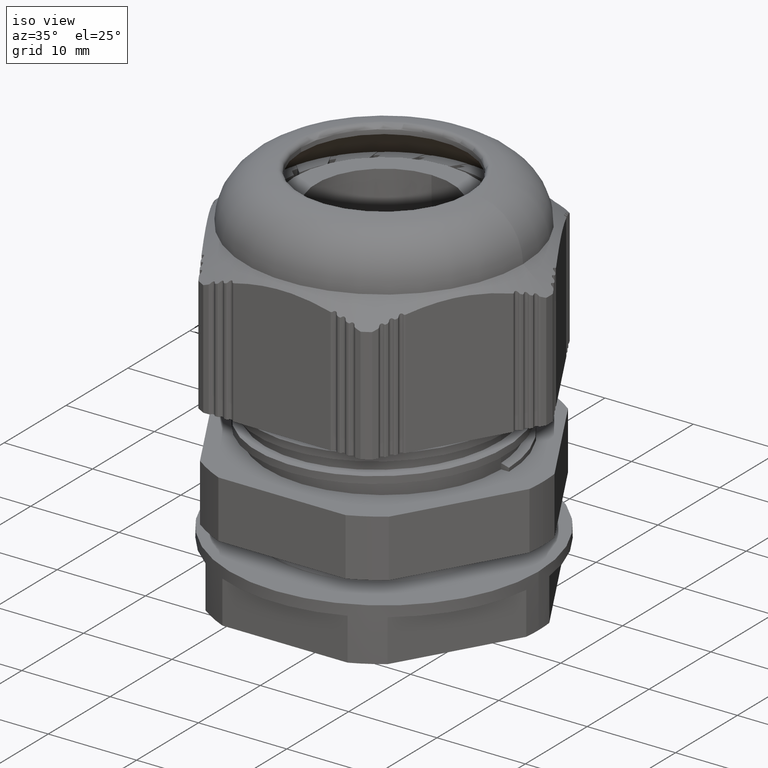
[diagram: clean part render]
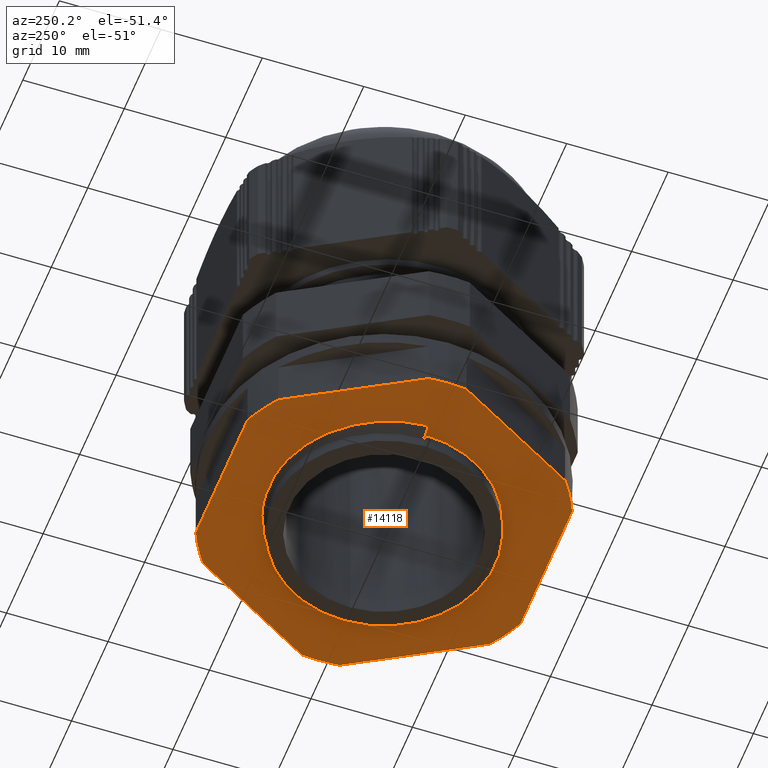
[diagram: tour spotlight — one face highlighted and labeled with its STEP entity id]
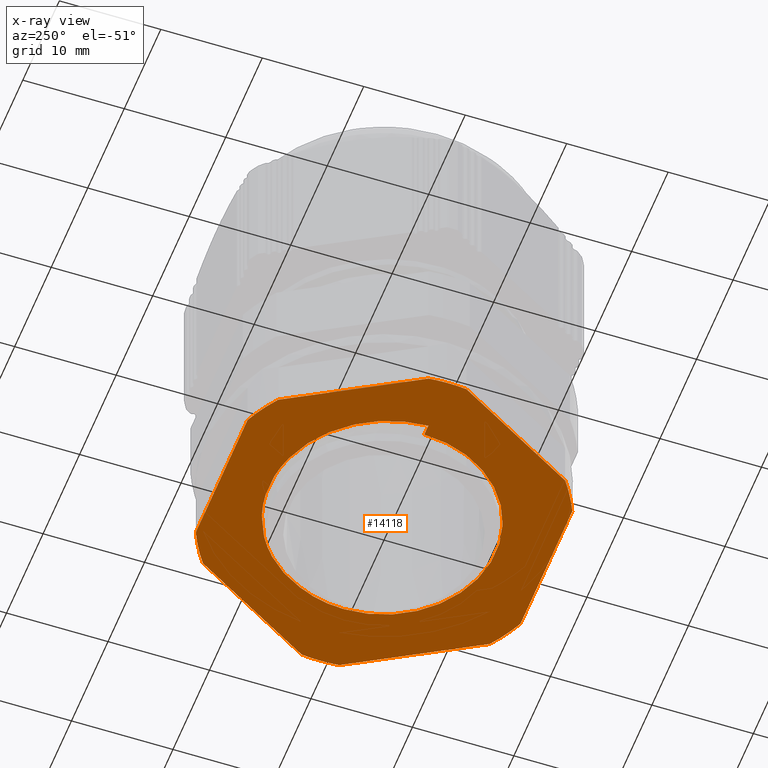
[diagram: x-ray of the same camera — body ghosted, this tour face saturated]
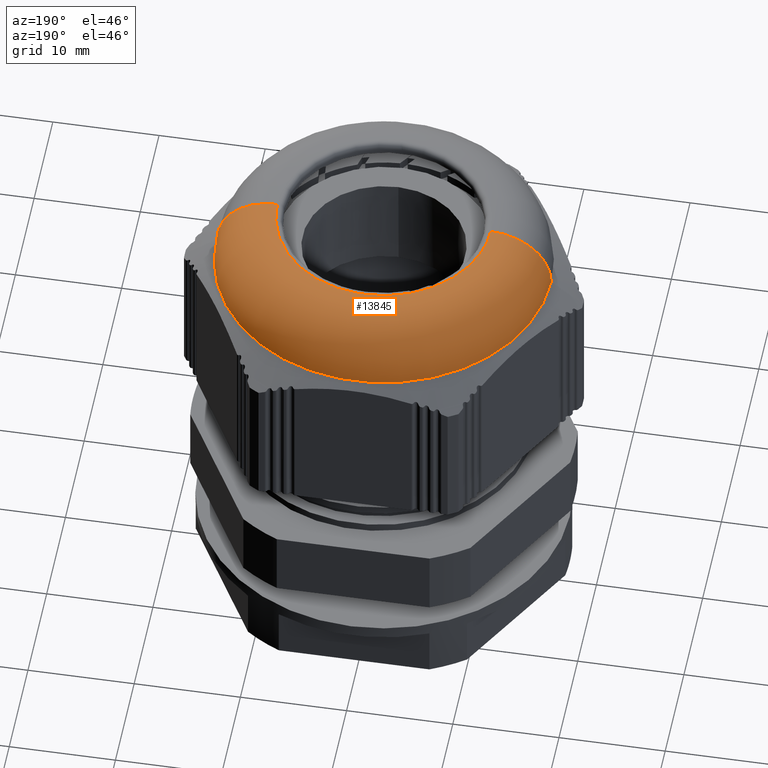
[diagram: tour spotlight — one face highlighted and labeled with its STEP entity id]
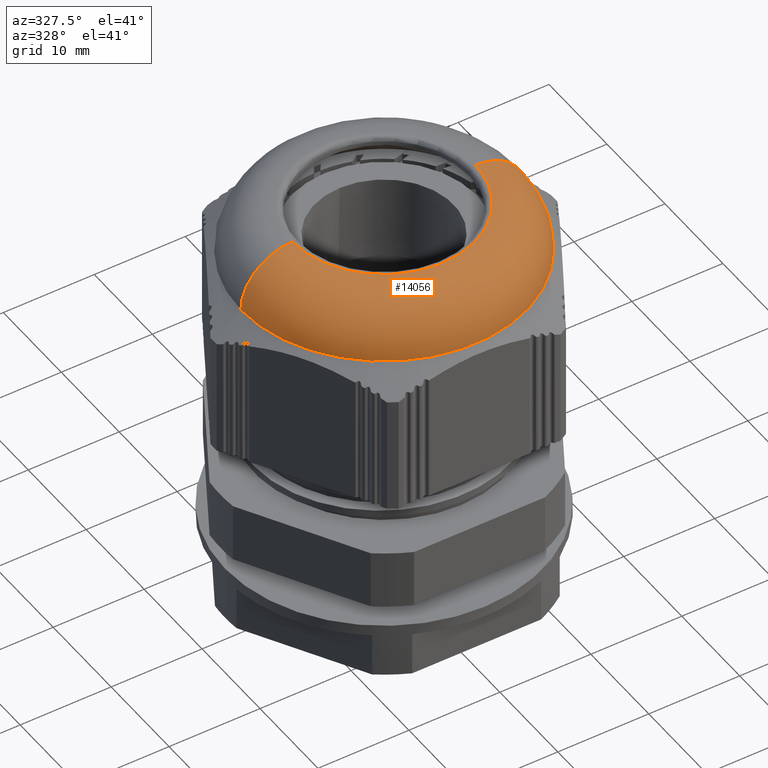
[diagram: tour spotlight — one face highlighted and labeled with its STEP entity id]
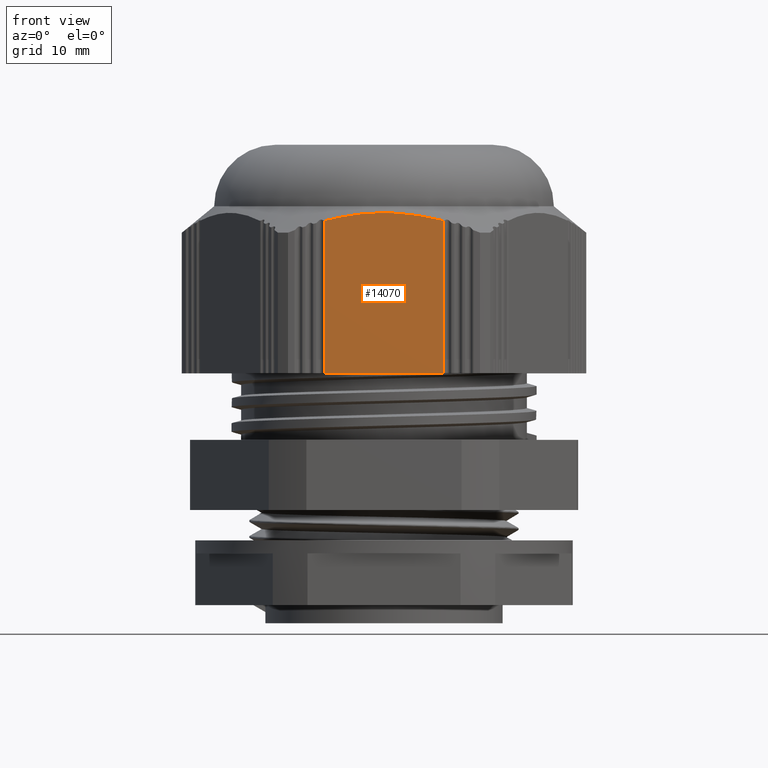
[diagram: tour spotlight — one face highlighted and labeled with its STEP entity id]
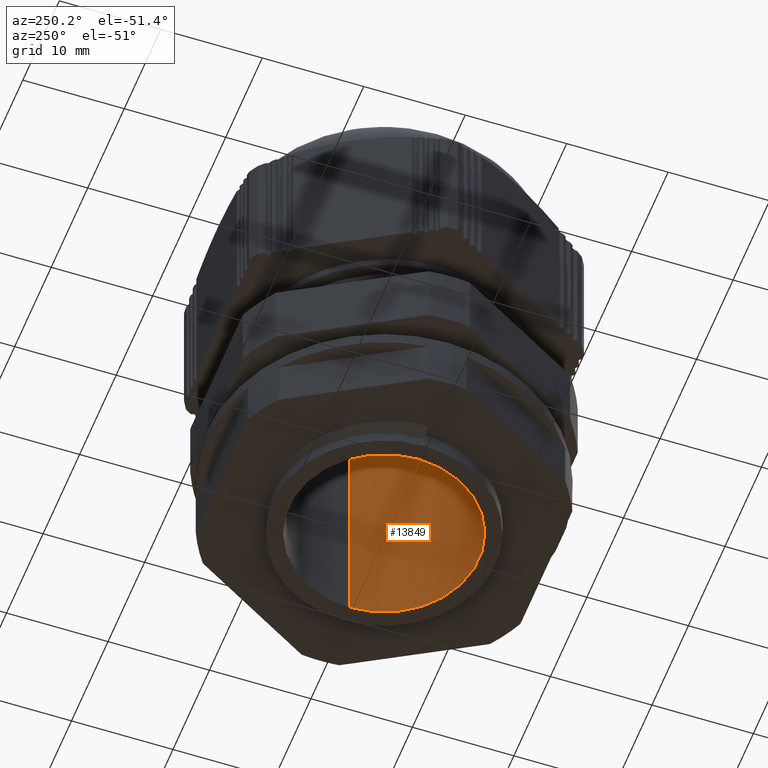
[diagram: tour spotlight — one face highlighted and labeled with its STEP entity id]
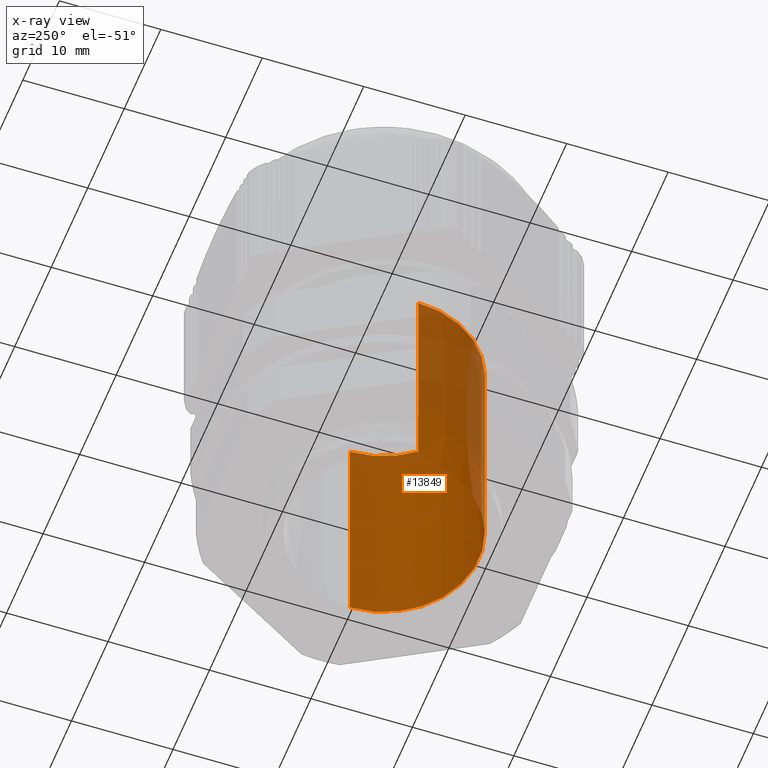
[diagram: x-ray of the same camera — body ghosted, this tour face saturated]
A machine part: a face-by-face anatomy tour. The part has 358 B-rep faces; the first image is the clean iso view, then the 5 largest visible faces are spotlighted one at a time (largest first), each with its STEP entity span.

Face 1 — auxiliary view, entity #14118. An x-ray twin of the same camera follows (body ghosted, this face saturated) — the face is partly hidden behind the body. In plain terms, the highlighted planar face has unit normal (0, 0, 1).
Definition (entity closure, byte-faithful):
#1379 = VERTEX_POINT ( 'NONE', #8354 ) ;
#1381 = VERTEX_POINT ( 'NONE', #8340 ) ;
#1389 = VERTEX_POINT ( 'NONE', #8372 ) ;
#1394 = VERTEX_POINT ( 'NONE', #8366 ) ;
#1398 = VERTEX_POINT ( 'NONE', #8374 ) ;
#1405 = VERTEX_POINT ( 'NONE', #8367 ) ;
#1427 = VERTEX_POINT ( 'NONE', #8398 ) ;
#1428 = VERTEX_POINT ( 'NONE', #8406 ) ;
#1429 = VERTEX_POINT ( 'NONE', #8403 ) ;
#1430 = VERTEX_POINT ( 'NONE', #8407 ) ;
#1765 = DIRECTION ( 'NONE',  ( 0.0000000000000000000, 0.0000000000000000000, 1.000000000000000000 ) ) ;
#1775 = DIRECTION ( 'NONE',  ( -0.0000000000000000000, -0.0000000000000000000, -1.000000000000000000 ) ) ;
#1776 = DIRECTION ( 'NONE',  ( -1.000000000000000000, 0.0000000000000000000, 0.0000000000000000000 ) ) ;
#1777 = CARTESIAN_POINT ( 'NONE',  ( 0.0000000000000000000, 0.0000000000000000000, 1.683063884747839400 ) ) ;
#1779 = DIRECTION ( 'NONE',  ( 1.000000000000000000, 0.0000000000000000000, 0.0000000000000000000 ) ) ;
#1792 = DIRECTION ( 'NONE',  ( 1.000000000000000000, 0.0000000000000000000, 0.0000000000000000000 ) ) ;
#1796 = CARTESIAN_POINT ( 'NONE',  ( 0.0000000000000000000, 0.0000000000000000000, 1.683063884747839400 ) ) ;
#1801 = CARTESIAN_POINT ( 'NONE',  ( 0.0000000000000000000, 0.0000000000000000000, 1.683063884747839400 ) ) ;
#1805 = DIRECTION ( 'NONE',  ( 0.0000000000000000000, 0.0000000000000000000, 1.000000000000000000 ) ) ;
#1900 = DIRECTION ( 'NONE',  ( 0.0000000000000000000, 0.0000000000000000000, 1.000000000000000000 ) ) ;
#1903 = DIRECTION ( 'NONE',  ( 1.000000000000000000, 0.0000000000000000000, 0.0000000000000000000 ) ) ;
#1907 = CARTESIAN_POINT ( 'NONE',  ( 0.0000000000000000000, 0.0000000000000000000, 1.683063884747839400 ) ) ;
#2068 = CARTESIAN_POINT ( 'NONE',  ( 0.0000000000000000000, 0.0000000000000000000, 1.683063884747839400 ) ) ;
#2076 = DIRECTION ( 'NONE',  ( 1.000000000000000000, 0.0000000000000000000, 0.0000000000000000000 ) ) ;
#2093 = DIRECTION ( 'NONE',  ( 0.0000000000000000000, 0.0000000000000000000, 1.000000000000000000 ) ) ;
#2613 = EDGE_CURVE ( 'NONE', #1394, #1430, #12995, .T. ) ;
#2615 = EDGE_CURVE ( 'NONE', #1381, #1398, #13008, .T. ) ;
#2620 = EDGE_CURVE ( 'NONE', #1379, #1429, #12998, .T. ) ;
#2638 = EDGE_CURVE ( 'NONE', #1428, #1389, #12892, .T. ) ;
#2656 = EDGE_CURVE ( 'NONE', #1405, #1427, #12912, .T. ) ;
#2954 = VECTOR ( 'NONE', #5865, 1000.000000000000000 ) ;
#2963 = VECTOR ( 'NONE', #5883, 1000.000000000000000 ) ;
#2972 = CIRCLE ( 'NONE', #2989, 11.00000000000000000 ) ;
#2977 = VECTOR ( 'NONE', #5882, 1000.000000000000000 ) ;
#2979 = VECTOR ( 'NONE', #15043, 1000.000000000000100 ) ;
#2986 = CIRCLE ( 'NONE', #2995, 17.50000000000000400 ) ;
#2989 = AXIS2_PLACEMENT_3D ( 'NONE', #5850, #5854, #5856 ) ;
#2995 = AXIS2_PLACEMENT_3D ( 'NONE', #5853, #5830, #5855 ) ;
#2996 = VECTOR ( 'NONE', #5860, 1000.000000000000000 ) ;
#3000 = VECTOR ( 'NONE', #5841, 1000.000000000000000 ) ;
#3014 = AXIS2_PLACEMENT_3D ( 'NONE', #5938, #5930, #5914 ) ;
#3016 = CIRCLE ( 'NONE', #3057, 17.50000000000000400 ) ;
#3037 = CIRCLE ( 'NONE', #3038, 17.50000000000000400 ) ;
#3038 = AXIS2_PLACEMENT_3D ( 'NONE', #5973, #5955, #5979 ) ;
#3051 = VECTOR ( 'NONE', #5992, 1000.000000000000200 ) ;
#3057 = AXIS2_PLACEMENT_3D ( 'NONE', #5959, #5970, #5976 ) ;
#3058 = CIRCLE ( 'NONE', #3014, 17.50000000000000400 ) ;
#3232 = ORIENTED_EDGE ( 'NONE', *, *, #13761, .F. ) ;
#3244 = ORIENTED_EDGE ( 'NONE', *, *, #13773, .F. ) ;
#3256 = ORIENTED_EDGE ( 'NONE', *, *, #13786, .T. ) ;
#3267 = ORIENTED_EDGE ( 'NONE', *, *, #13811, .F. ) ;
#3275 = ORIENTED_EDGE ( 'NONE', *, *, #13790, .F. ) ;
#3279 = ORIENTED_EDGE ( 'NONE', *, *, #13805, .F. ) ;
#3281 = ORIENTED_EDGE ( 'NONE', *, *, #2638, .F. ) ;
#3286 = ORIENTED_EDGE ( 'NONE', *, *, #13769, .F. ) ;
#3319 = ORIENTED_EDGE ( 'NONE', *, *, #2620, .F. ) ;
#3351 = ORIENTED_EDGE ( 'NONE', *, *, #13774, .F. ) ;
#3353 = ORIENTED_EDGE ( 'NONE', *, *, #13777, .F. ) ;
#3360 = ORIENTED_EDGE ( 'NONE', *, *, #13812, .F. ) ;
#3364 = ORIENTED_EDGE ( 'NONE', *, *, #13800, .F. ) ;
#3371 = ORIENTED_EDGE ( 'NONE', *, *, #2656, .F. ) ;
#3392 = ORIENTED_EDGE ( 'NONE', *, *, #2615, .F. ) ;
#3393 = ORIENTED_EDGE ( 'NONE', *, *, #13809, .F. ) ;
#3395 = ORIENTED_EDGE ( 'NONE', *, *, #13779, .F. ) ;
#3397 = ORIENTED_EDGE ( 'NONE', *, *, #13806, .F. ) ;
#3402 = ORIENTED_EDGE ( 'NONE', *, *, #2613, .F. ) ;
#3440 = AXIS2_PLACEMENT_3D ( 'NONE', #9798, #9764, #9800 ) ;
#5830 = DIRECTION ( 'NONE',  ( 0.0000000000000000000, 0.0000000000000000000, 1.000000000000000000 ) ) ;
#5833 = LINE ( 'NONE', #5840, #2963 ) ;
#5836 = CARTESIAN_POINT ( 'NONE',  ( -17.40076818024047600, -1.860985421095686700, 1.683063884747839400 ) ) ;
#5840 = CARTESIAN_POINT ( 'NONE',  ( 18.47520861406803000, 16.00000000000001400, 1.683063884747839400 ) ) ;
#5841 = DIRECTION ( 'NONE',  ( 0.4999999999999999400, -0.8660254037844387100, 0.0000000000000000000 ) ) ;
#5844 = LINE ( 'NONE', #5846, #2996 ) ;
#5846 = CARTESIAN_POINT ( 'NONE',  ( 18.47520861406803000, -16.00000000000000700, 1.683063884747839400 ) ) ;
#5850 = CARTESIAN_POINT ( 'NONE',  ( 0.0000000000000000000, 0.0000000000000000000, 1.683063884747839400 ) ) ;
#5851 = LINE ( 'NONE', #5836, #3000 ) ;
#5853 = CARTESIAN_POINT ( 'NONE',  ( 0.0000000000000000000, 0.0000000000000000000, 1.683063884747839400 ) ) ;
#5854 = DIRECTION ( 'NONE',  ( -0.0000000000000000000, -0.0000000000000000000, -1.000000000000000000 ) ) ;
#5855 = DIRECTION ( 'NONE',  ( 1.000000000000000000, 0.0000000000000000000, 0.0000000000000000000 ) ) ;
#5856 = DIRECTION ( 'NONE',  ( -1.000000000000000000, 0.0000000000000000000, 0.0000000000000000000 ) ) ;
#5860 = DIRECTION ( 'NONE',  ( 1.000000000000000000, 0.0000000000000000000, -0.0000000000000000000 ) ) ;
#5865 = DIRECTION ( 'NONE',  ( 0.4999999999999996700, 0.8660254037844388200, 0.0000000000000000000 ) ) ;
#5867 = CARTESIAN_POINT ( 'NONE',  ( -12.34913000000002200, 2.248761003721581200E-015, 1.683063884747838100 ) ) ;
#5879 = LINE ( 'NONE', #5867, #2977 ) ;
#5882 = DIRECTION ( 'NONE',  ( 1.000000000000000000, -1.820987392408677800E-016, -0.0000000000000000000 ) ) ;
#5883 = DIRECTION ( 'NONE',  ( -1.000000000000000000, -0.0000000000000000000, 0.0000000000000000000 ) ) ;
#5893 = LINE ( 'NONE', #5905, #2954 ) ;
#5905 = CARTESIAN_POINT ( 'NONE',  ( 10.31204474086156300, -14.13901457890434300, 1.683063884747839400 ) ) ;
#5909 = CARTESIAN_POINT ( 'NONE',  ( 5.974419447347540500, 9.520712719409656800, 1.683063884747839200 ) ) ;
#5910 = CARTESIAN_POINT ( 'NONE',  ( 7.799494281202293600, 8.001886239867454600, 1.683063884747839400 ) ) ;
#5914 = DIRECTION ( 'NONE',  ( 1.000000000000000000, 0.0000000000000000000, 0.0000000000000000000 ) ) ;
#5917 = CARTESIAN_POINT ( 'NONE',  ( 3.131096955339576700, 10.91147649098142700, 1.683063884747874900 ) ) ;
#5918 = CARTESIAN_POINT ( 'NONE',  ( 6.613533246483595600, 9.052101516535339300, 1.683063884747839400 ) ) ;
#5922 = CARTESIAN_POINT ( 'NONE',  ( 8.322150107432714000, 7.416035087946964300, 1.683063884747840100 ) ) ;
#5930 = DIRECTION ( 'NONE',  ( 0.0000000000000000000, 0.0000000000000000000, 1.000000000000000000 ) ) ;
#5933 = CARTESIAN_POINT ( 'NONE',  ( 6.922113907201492100, 8.799768020070928300, 1.683063884747839600 ) ) ;
#5938 = CARTESIAN_POINT ( 'NONE',  ( 0.0000000000000000000, 0.0000000000000000000, 1.683063884747839400 ) ) ;
#5944 = CARTESIAN_POINT ( 'NONE',  ( -12.11577790937020900, 2.206267882218671500E-015, 1.683063884747838500 ) ) ;
#5947 = CARTESIAN_POINT ( 'NONE',  ( -12.08626257387906100, 0.9122028794259605700, 1.683063884747839900 ) ) ;
#5951 = CARTESIAN_POINT ( 'NONE',  ( 3.886408936541675600, 10.66404756229517000, 1.683063884747840300 ) ) ;
#5952 = CARTESIAN_POINT ( 'NONE',  ( 4.613057182550522700, 10.33773147149879500, 1.683063884747839000 ) ) ;
#5953 = CARTESIAN_POINT ( 'NONE',  ( 5.641984660765238900, 9.738554799246923500, 1.683063884747839000 ) ) ;
#5955 = DIRECTION ( 'NONE',  ( 0.0000000000000000000, 0.0000000000000000000, 1.000000000000000000 ) ) ;
#5957 = CARTESIAN_POINT ( 'NONE',  ( -8.902934828736855300, 7.784228146425386200, 1.683063884747839900 ) ) ;
#5958 = CARTESIAN_POINT ( 'NONE',  ( -8.589462923244092000, 8.106869384956123500, 1.683063884747840300 ) ) ;
#5959 = CARTESIAN_POINT ( 'NONE',  ( 0.0000000000000000000, 0.0000000000000000000, 1.683063884747839400 ) ) ;
#5960 = LINE ( 'NONE', #5975, #3051 ) ;
#5962 = CARTESIAN_POINT ( 'NONE',  ( -11.95357102954644200, 1.811028998163984000, 1.683063884747839600 ) ) ;
#5963 = CARTESIAN_POINT ( 'NONE',  ( -11.48375418122376800, 3.572956705586236600, 1.683063884747839400 ) ) ;
#5964 = CARTESIAN_POINT ( 'NONE',  ( -7.925289159038128700, 8.716694501603040400, 1.683063884747839600 ) ) ;
#5965 = CARTESIAN_POINT ( 'NONE',  ( -10.28539064254694700, 5.994921877089128200, 1.683063884747839400 ) ) ;
#5966 = CARTESIAN_POINT ( 'NONE',  ( -0.4413816625350680500, 11.48173165181537500, 1.683063884747829600 ) ) ;
#5967 = CARTESIAN_POINT ( 'NONE',  ( 3.131096955339576700, 10.91147649098142700, 1.683063884747874900 ) ) ;
#5969 = CARTESIAN_POINT ( 'NONE',  ( -10.52042664307007400, 5.606015347694339300, 1.683063884747837200 ) ) ;
#5970 = DIRECTION ( 'NONE',  ( 0.0000000000000000000, 0.0000000000000000000, 1.000000000000000000 ) ) ;
#5971 = CARTESIAN_POINT ( 'NONE',  ( -9.493232351348176200, 7.104044184340663600, 1.683063884747839900 ) ) ;
#5972 = CARTESIAN_POINT ( 'NONE',  ( 0.01579741442921964500, 11.47485940879346700, 1.683063884747839400 ) ) ;
#5973 = CARTESIAN_POINT ( 'NONE',  ( 0.0000000000000000000, 0.0000000000000000000, 1.683063884747839400 ) ) ;
#5974 = CARTESIAN_POINT ( 'NONE',  ( 1.376048586341005500, 11.37160041452512300, 1.683063884747839400 ) ) ;
#5975 = CARTESIAN_POINT ( 'NONE',  ( 17.40076818024048300, 1.860985421095650500, 1.683063884747839400 ) ) ;
#5976 = DIRECTION ( 'NONE',  ( 1.000000000000000000, 0.0000000000000000000, 0.0000000000000000000 ) ) ;
#5977 = CARTESIAN_POINT ( 'NONE',  ( -2.680799450762675100, 11.25538117716952300, 1.683063884747839000 ) ) ;
#5978 = CARTESIAN_POINT ( 'NONE',  ( -4.428636263867178800, 10.76074569129496100, 1.683063884747839200 ) ) ;
#5979 = DIRECTION ( 'NONE',  ( 1.000000000000000000, 0.0000000000000000000, 0.0000000000000000000 ) ) ;
#5980 = CARTESIAN_POINT ( 'NONE',  ( -1.343731100749014700, 11.44323695676710500, 1.683063884747829600 ) ) ;
#5982 = CARTESIAN_POINT ( 'NONE',  ( 9.009562913281074600, 6.453614012052541100, 1.683063884747840300 ) ) ;
#5983 = CARTESIAN_POINT ( 'NONE',  ( 9.943215199785269600, 4.704516074024956800, 1.683063884747839900 ) ) ;
#5984 = CARTESIAN_POINT ( 'NONE',  ( -11.15365363612907500, 4.411052317209758700, 1.683063884747838100 ) ) ;
#5985 = CARTESIAN_POINT ( 'NONE',  ( -7.572853920774036900, 9.004529697415284400, 1.683063884747838300 ) ) ;
#5989 = CARTESIAN_POINT ( 'NONE',  ( -9.769988469205042500, 6.746435270524340700, 1.683063884747840100 ) ) ;
#5990 = CARTESIAN_POINT ( 'NONE',  ( -3.998011495919640400, 10.91052440818211100, 1.683063884747839400 ) ) ;
#5992 = DIRECTION ( 'NONE',  ( -0.5000000000000001100, 0.8660254037844384900, 0.0000000000000000000 ) ) ;
#5994 = CARTESIAN_POINT ( 'NONE',  ( -3.122123948471701400, 11.15824952456751600, 1.683063884747839200 ) ) ;
#5997 = CARTESIAN_POINT ( 'NONE',  ( -5.678588387422710300, 10.24289739106121100, 1.683063884747839600 ) ) ;
#5998 = CARTESIAN_POINT ( 'NONE',  ( 9.787153797995335600, 5.070145051658619700, 1.683063884747840100 ) ) ;
#5999 = CARTESIAN_POINT ( 'NONE',  ( 9.223365598644635500, 6.117384190597981300, 1.683063884747838700 ) ) ;
#6000 = CARTESIAN_POINT ( 'NONE',  ( -1.791603291295149800, 11.39787698379420700, 1.683063884747839200 ) ) ;
#6001 = CARTESIAN_POINT ( 'NONE',  ( 9.611918009041218600, 5.425816641701778100, 1.683063884747839200 ) ) ;
#6002 = CARTESIAN_POINT ( 'NONE',  ( -6.465173636445705100, 9.804897509755138100, 1.683063884747838300 ) ) ;
#6003 = CARTESIAN_POINT ( 'NONE',  ( 2.263421757228671400, 11.19571393201138000, 1.683063884747902900 ) ) ;
#7820 = B_SPLINE_CURVE_WITH_KNOTS ( 'NONE', 3,
 ( #5944, #5947, #5962, #5963, #5984, #5969, #5965, #5989, #5971, #5957, #5958, #5964, #5985, #6002, #5997, #5978, #5990, #5994, #5977, #6000, #5980, #5966, #5972, #5974, #6003, #5967 ),
 .UNSPECIFIED., .F., .F.,
 ( 4, 2, 2, 2, 2, 2, 2, 2, 2, 2, 2, 2, 4 ),
 ( 2.453495291728958200E-019, 0.002721176112002368400, 0.005442352224004735900, 0.006802940280005920700, 0.008163528336007105600, 0.009524116392008291300, 0.01088470444800947500, 0.01360588056001184500, 0.01496646861601302900, 0.01632705667201421100, 0.01768764472801539300, 0.01904823278401657900, 0.02176940889601894700 ),
 .UNSPECIFIED. ) ;
#7829 = B_SPLINE_CURVE_WITH_KNOTS ( 'NONE', 3,
 ( #5917, #5951, #5952, #5953, #5909, #5918, #5933, #5910, #5922, #5982, #5999, #6001, #5998, #5983 ),
 .UNSPECIFIED., .F., .F.,
 ( 4, 2, 2, 2, 2, 2, 4 ),
 ( 0.0000000000000000000, 0.002382675661871981600, 0.003574013492807972800, 0.004765351323743963200, 0.007148026985615945700, 0.008339364816551933900, 0.009530702647487922900 ),
 .UNSPECIFIED. ) ;
#8340 = CARTESIAN_POINT ( 'NONE',  ( -17.40076818024048000, 1.860985421095654700, 1.683063884747839400 ) ) ;
#8354 = CARTESIAN_POINT ( 'NONE',  ( 17.50000000000000400, 0.0000000000000000000, 1.683063884747839400 ) ) ;
#8366 = CARTESIAN_POINT ( 'NONE',  ( 9.943215199785269600, 4.704516074024956800, 1.683063884747839900 ) ) ;
#8367 = CARTESIAN_POINT ( 'NONE',  ( 10.31204474086155400, 14.13901457890435000, 1.683063884747839400 ) ) ;
#8372 = CARTESIAN_POINT ( 'NONE',  ( -10.31204474086155500, 14.13901457890434800, 1.683063884747839400 ) ) ;
#8374 = CARTESIAN_POINT ( 'NONE',  ( -17.50000000000000400, 2.143131898507868600E-015, 1.683063884747839400 ) ) ;
#8398 = CARTESIAN_POINT ( 'NONE',  ( 7.088723439378888700, 16.00000000000001400, 1.683063884747839400 ) ) ;
#8403 = CARTESIAN_POINT ( 'NONE',  ( 17.40076818024048300, 1.860985421095653100, 1.683063884747839000 ) ) ;
#8406 = CARTESIAN_POINT ( 'NONE',  ( -7.088723439378888700, 16.00000000000001400, 1.683063884747839400 ) ) ;
#8407 = CARTESIAN_POINT ( 'NONE',  ( 11.00000000000000000, 1.347111479062088400E-015, 1.683063884747839400 ) ) ;
#9764 = DIRECTION ( 'NONE',  ( 0.0000000000000000000, 0.0000000000000000000, 1.000000000000000000 ) ) ;
#9768 = PLANE ( 'NONE',  #3440 ) ;
#9789 = FACE_BOUND ( 'NONE', #10499, .T. ) ;
#9797 = FACE_OUTER_BOUND ( 'NONE', #10522, .T. ) ;
#9798 = CARTESIAN_POINT ( 'NONE',  ( 18.47520861406803000, 0.0000000000000000000, 1.683063884747839400 ) ) ;
#9800 = DIRECTION ( 'NONE',  ( 1.000000000000000000, 0.0000000000000000000, -0.0000000000000000000 ) ) ;
#10499 = EDGE_LOOP ( 'NONE', ( #3397, #3256, #3286, #3402, #3279 ) ) ;
#10522 = EDGE_LOOP ( 'NONE', ( #3244, #3275, #3267, #3351, #3364, #3353, #3360, #3392, #3232, #3281, #3395, #3371, #3393, #3319 ) ) ;
#11486 = VERTEX_POINT ( 'NONE', #11654 ) ;
#11496 = VERTEX_POINT ( 'NONE', #11632 ) ;
#11500 = VERTEX_POINT ( 'NONE', #11648 ) ;
#11501 = VERTEX_POINT ( 'NONE', #11646 ) ;
#11502 = VERTEX_POINT ( 'NONE', #11649 ) ;
#11503 = VERTEX_POINT ( 'NONE', #11653 ) ;
#11506 = VERTEX_POINT ( 'NONE', #11658 ) ;
#11509 = VERTEX_POINT ( 'NONE', #11635 ) ;
#11510 = VERTEX_POINT ( 'NONE', #11656 ) ;
#11632 = CARTESIAN_POINT ( 'NONE',  ( 3.131096955339576700, 10.91147649098142700, 1.683063884747874900 ) ) ;
#11635 = CARTESIAN_POINT ( 'NONE',  ( 10.31204474086156300, -14.13901457890434300, 1.683063884747839400 ) ) ;
#11646 = CARTESIAN_POINT ( 'NONE',  ( -10.31204474086158400, -14.13901457890432500, 1.683063884747839400 ) ) ;
#11648 = CARTESIAN_POINT ( 'NONE',  ( 17.40076818024048000, -1.860985421095647400, 1.683063884747839400 ) ) ;
#11649 = CARTESIAN_POINT ( 'NONE',  ( -7.088723439378908300, -16.00000000000000700, 1.683063884747839400 ) ) ;
#11653 = CARTESIAN_POINT ( 'NONE',  ( -11.00000000000000000, 1.502314598737158800E-015, 1.683063884747838500 ) ) ;
#11654 = CARTESIAN_POINT ( 'NONE',  ( -12.11577790937020900, 2.206267882218671500E-015, 1.683063884747838500 ) ) ;
#11656 = CARTESIAN_POINT ( 'NONE',  ( -17.40076818024048000, -1.860985421095684000, 1.683063884747839400 ) ) ;
#11658 = CARTESIAN_POINT ( 'NONE',  ( 7.088723439378897600, -16.00000000000001100, 1.683063884747839400 ) ) ;
#12892 = CIRCLE ( 'NONE', #12893, 17.50000000000000400 ) ;
#12893 = AXIS2_PLACEMENT_3D ( 'NONE', #1907, #1900, #1903 ) ;
#12912 = CIRCLE ( 'NONE', #12914, 17.50000000000000400 ) ;
#12914 = AXIS2_PLACEMENT_3D ( 'NONE', #2068, #2093, #2076 ) ;
#12987 = AXIS2_PLACEMENT_3D ( 'NONE', #1777, #1805, #1779 ) ;
#12995 = CIRCLE ( 'NONE', #13025, 11.00000000000000000 ) ;
#12998 = CIRCLE ( 'NONE', #12987, 17.50000000000000400 ) ;
#13008 = CIRCLE ( 'NONE', #13010, 17.50000000000000400 ) ;
#13010 = AXIS2_PLACEMENT_3D ( 'NONE', #1796, #1765, #1792 ) ;
#13025 = AXIS2_PLACEMENT_3D ( 'NONE', #1801, #1775, #1776 ) ;
#13761 = EDGE_CURVE ( 'NONE', #1389, #1381, #15073, .T. ) ;
#13769 = EDGE_CURVE ( 'NONE', #1430, #11503, #2972, .T. ) ;
#13773 = EDGE_CURVE ( 'NONE', #11500, #1379, #2986, .T. ) ;
#13774 = EDGE_CURVE ( 'NONE', #11502, #11506, #5844, .T. ) ;
#13777 = EDGE_CURVE ( 'NONE', #11510, #11501, #5851, .T. ) ;
#13779 = EDGE_CURVE ( 'NONE', #1427, #1428, #5833, .T. ) ;
#13786 = EDGE_CURVE ( 'NONE', #11486, #11503, #5879, .T. ) ;
#13790 = EDGE_CURVE ( 'NONE', #11509, #11500, #5893, .T. ) ;
#13800 = EDGE_CURVE ( 'NONE', #11501, #11502, #3058, .T. ) ;
#13805 = EDGE_CURVE ( 'NONE', #11496, #1394, #7829, .T. ) ;
#13806 = EDGE_CURVE ( 'NONE', #11486, #11496, #7820, .T. ) ;
#13809 = EDGE_CURVE ( 'NONE', #1429, #1405, #5960, .T. ) ;
#13811 = EDGE_CURVE ( 'NONE', #11506, #11509, #3037, .T. ) ;
#13812 = EDGE_CURVE ( 'NONE', #1398, #11510, #3016, .T. ) ;
#14118 = ADVANCED_FACE ( 'NONE', ( #9797, #9789 ), #9768, .F. ) ;
#15043 = DIRECTION ( 'NONE',  ( -0.5000000000000002200, -0.8660254037844384900, 0.0000000000000000000 ) ) ;
#15073 = LINE ( 'NONE', #15087, #2979 ) ;
#15087 = CARTESIAN_POINT ( 'NONE',  ( -10.31204474086155500, 14.13901457890434600, 1.683063884747839400 ) ) ;

Face 2 — auxiliary view, entity #13845. In plain terms, the highlighted toroidal blend (fillet) surface has major radius 10.05 mm and minor (blend) radius 5.7 mm.
Definition (entity closure, byte-faithful):
#13 = CARTESIAN_POINT ( 'NONE',  ( 10.04999999999999200, -1.230770033143087600E-015, 44.37108913028694000 ) ) ;
#1457 = VERTEX_POINT ( 'NONE', #2467 ) ;
#1474 = VERTEX_POINT ( 'NONE', #2441 ) ;
#1493 = VERTEX_POINT ( 'NONE', #2488 ) ;
#1516 = VERTEX_POINT ( 'NONE', #2485 ) ;
#1974 = CARTESIAN_POINT ( 'NONE',  ( -6.192428378583992900E-015, 4.538302377717305100E-016, 38.67108913028690900 ) ) ;
#2103 = DIRECTION ( 'NONE',  ( 1.110223024625156500E-015, -1.850371707708594100E-016, -1.000000000000000000 ) ) ;
#2441 = CARTESIAN_POINT ( 'NONE',  ( 10.04999999999999200, -1.230770033143087600E-015, 44.37108913028694000 ) ) ;
#2467 = CARTESIAN_POINT ( 'NONE',  ( 15.74999999999999600, -6.153850165715449700E-016, 38.67108913028692300 ) ) ;
#2485 = CARTESIAN_POINT ( 'NONE',  ( -10.04999999999999200, 1.300574900694488100E-015, 44.37108913028694000 ) ) ;
#2488 = CARTESIAN_POINT ( 'NONE',  ( -15.75000000000000400, 1.313433692085536700E-015, 38.67108913028690200 ) ) ;
#2712 = EDGE_CURVE ( 'NONE', #1493, #1457, #12937, .T. ) ;
#2735 = EDGE_CURVE ( 'NONE', #1474, #1516, #7656, .T. ) ;
#2762 = EDGE_CURVE ( 'NONE', #1457, #1474, #4868, .T. ) ;
#2785 = EDGE_CURVE ( 'NONE', #1493, #1516, #4861, .T. ) ;
#3063 = TOROIDAL_SURFACE ( 'NONE', #3069, 10.04999999999997800, 5.700000000000013500 ) ;
#3069 = AXIS2_PLACEMENT_3D ( 'NONE', #6144, #6154, #6163 ) ;
#3875 = ORIENTED_EDGE ( 'NONE', *, *, #2712, .F. ) ;
#3876 = ORIENTED_EDGE ( 'NONE', *, *, #2785, .T. ) ;
#3929 = ORIENTED_EDGE ( 'NONE', *, *, #2762, .F. ) ;
#3956 = ORIENTED_EDGE ( 'NONE', *, *, #2735, .F. ) ;
#4858 = AXIS2_PLACEMENT_3D ( 'NONE', #5454, #5440, #5448 ) ;
#4861 = CIRCLE ( 'NONE', #4858, 5.700000000000012600 ) ;
#4866 = AXIS2_PLACEMENT_3D ( 'NONE', #5310, #5311, #5312 ) ;
#4868 = CIRCLE ( 'NONE', #4866, 5.700000000000010800 ) ;
#5310 = CARTESIAN_POINT ( 'NONE',  ( 10.04999999999997800, -6.153850165715449700E-016, 38.67108913028693700 ) ) ;
#5311 = DIRECTION ( 'NONE',  ( 0.0000000000000000000, -1.000000000000000000, 0.0000000000000000000 ) ) ;
#5312 = DIRECTION ( 'NONE',  ( 0.0000000000000000000, 0.0000000000000000000, -1.000000000000000000 ) ) ;
#5440 = DIRECTION ( 'NONE',  ( 1.224646799147353200E-016, 1.000000000000000000, -0.0000000000000000000 ) ) ;
#5448 = DIRECTION ( 'NONE',  ( -1.000000000000000000, 1.224646799147353500E-016, 0.0000000000000000000 ) ) ;
#5454 = CARTESIAN_POINT ( 'NONE',  ( -10.04999999999997800, 6.153850165715421100E-016, 38.67108913028693700 ) ) ;
#6144 = CARTESIAN_POINT ( 'NONE',  ( 0.0000000000000000000, -6.153850165715449700E-016, 38.67108913028693700 ) ) ;
#6154 = DIRECTION ( 'NONE',  ( 0.0000000000000000000, 0.0000000000000000000, 1.000000000000000000 ) ) ;
#6155 = FACE_OUTER_BOUND ( 'NONE', #11159, .T. ) ;
#6163 = DIRECTION ( 'NONE',  ( 1.000000000000000000, 0.0000000000000000000, 0.0000000000000000000 ) ) ;
#7656 = B_SPLINE_CURVE_WITH_KNOTS ( 'NONE', 3,
 ( #13, #15133, #14326, #14339, #14321, #14346, #14334, #14325, #14327, #14347, #14322, #14336, #14328, #14329, #14333, #14324, #14344, #14330, #14323, #14332, #14331, #14337, #14338, #14340, #14341, #14342, #14362, #14363, #14360, #14376, #14350, #14370, #14351, #14348, #14352, #14358, #14368, #14371, #14353, #14354, #14372, #14355, #14382, #14389, #14390, #14399, #14400, #14396, #14401, #14392, #14393, #14416, #14403, #14405, #14413, #14418, #14404, #14406, #14411, #14414, #14417, #14425, #14421, #14431, #14448, #14436, #14439, #14441, #14446, #14447, #14474, #14463, #14467, #14476, #14472, #14461, #14471, #14449, #14470, #14473, #14477, #14478, #14479, #14480, #14453, #14458, #14490, #14495, #14497, #14507, #14500, #14501, #14510, #14506, #14504, #14508, #14484, #14481, #14483, #14486, #14488, #14489, #14528 ),
 .UNSPECIFIED., .F., .F.,
 ( 4, 1, 1, 1, 1, 1, 1, 2, 2, 1, 1, 1, 1, 2, 2, 1, 1, 1, 1, 2, 2, 1, 1, 1, 1, 2, 2, 1, 1, 1, 1, 2, 2, 1, 1, 1, 2, 2, 2, 1, 1, 1, 2, 2, 1, 1, 1, 1, 2, 2, 1, 1, 1, 1, 2, 2, 1, 1, 1, 1, 2, 2, 1, 1, 1, 1, 2, 2, 1, 1, 1, 1, 1, 2, 2, 4 ),
 ( 0.0000000000000000000, 0.06249999999999622500, 0.09374999999999431000, 0.1093749999999933700, 0.1171874999999928900, 0.1210937499999926600, 0.1230468749999925500, 0.1240234374999925100, 0.1249999999999924800, 0.1562499999999909000, 0.1718749999999900900, 0.1796874999999896200, 0.1835937499999894300, 0.1855468749999894300, 0.1874999999999894300, 0.2187499999999896700, 0.2343749999999898700, 0.2421874999999899800, 0.2460937499999900600, 0.2480468749999900400, 0.2499999999999900100, 0.2812499999999905600, 0.2968749999999908400, 0.3046874999999909500, 0.3085937499999910100, 0.3105468749999910100, 0.3124999999999910100, 0.3437499999999905600, 0.3593749999999903400, 0.3671874999999901700, 0.3710937499999901700, 0.3730468749999901700, 0.3749999999999901700, 0.4062499999999900600, 0.4218749999999900100, 0.4296874999999899000, 0.4335937499999899000, 0.4374999999999899000, 0.4999999999999897900, 0.5312499999999897900, 0.5468749999999896700, 0.5546874999999896700, 0.5585937499999896700, 0.5624999999999896700, 0.5937499999999897900, 0.6093749999999897900, 0.6171874999999899000, 0.6210937499999900100, 0.6230468749999901200, 0.6249999999999902300, 0.6562499999999913400, 0.6718749999999917800, 0.6796874999999921200, 0.6835937499999923400, 0.6855468749999924500, 0.6874999999999925600, 0.7187499999999926700, 0.7343749999999926700, 0.7421874999999926700, 0.7460937499999926700, 0.7480468749999927800, 0.7499999999999928900, 0.7812499999999941200, 0.7968749999999946700, 0.8046874999999951200, 0.8085937499999953400, 0.8105468749999954500, 0.8124999999999955600, 0.8437499999999965600, 0.8593749999999970000, 0.8671874999999972200, 0.8710937499999973400, 0.8730468749999973400, 0.8740234374999974500, 0.8749999999999974500, 1.000000000000000000 ),
 .UNSPECIFIED. ) ;
#11159 = EDGE_LOOP ( 'NONE', ( #3875, #3876, #3956, #3929 ) ) ;
#12937 = CIRCLE ( 'NONE', #12940, 15.75000000000001100 ) ;
#12940 = AXIS2_PLACEMENT_3D ( 'NONE', #1974, #2103, #14566 ) ;
#13845 = ADVANCED_FACE ( 'NONE', ( #6155 ), #3063, .T. ) ;
#14321 = CARTESIAN_POINT ( 'NONE',  ( 9.757882979325406900, 2.410997610241742500, 44.37108913028694000 ) ) ;
#14322 = CARTESIAN_POINT ( 'NONE',  ( 9.650492372790742100, 2.805452562035200900, 44.37108913028693300 ) ) ;
#14323 = CARTESIAN_POINT ( 'NONE',  ( 9.042440318932760200, 4.386017580671025800, 44.37108913028694000 ) ) ;
#14324 = CARTESIAN_POINT ( 'NONE',  ( 9.087780233526082400, 4.291498325535212800, 44.37108913028694700 ) ) ;
#14325 = CARTESIAN_POINT ( 'NONE',  ( 9.662536278342644300, 2.763739898315246800, 44.37108913028694000 ) ) ;
#14326 = CARTESIAN_POINT ( 'NONE',  ( 9.999661095600922400, 1.189351680552551200, 44.37108913028694700 ) ) ;
#14327 = CARTESIAN_POINT ( 'NONE',  ( 9.656330962295598400, 2.785283468334276400, 44.37108913028694000 ) ) ;
#14328 = CARTESIAN_POINT ( 'NONE',  ( 9.431640606864807100, 3.491398099062585900, 44.37108913028694700 ) ) ;
#14329 = CARTESIAN_POINT ( 'NONE',  ( 9.242573151777820700, 3.951396888903681700, 44.37108913028694000 ) ) ;
#14330 = CARTESIAN_POINT ( 'NONE',  ( 9.049289688035354800, 4.371858486424610400, 44.37108913028693300 ) ) ;
#14331 = CARTESIAN_POINT ( 'NONE',  ( 8.664985676624436200, 5.108811111997890300, 44.37108913028695400 ) ) ;
#14332 = CARTESIAN_POINT ( 'NONE',  ( 8.893988604941093000, 4.690572641847913000, 44.37108913028694000 ) ) ;
#14333 = CARTESIAN_POINT ( 'NONE',  ( 9.140615237413467000, 4.178597623396063600, 44.37108913028694000 ) ) ;
#14334 = CARTESIAN_POINT ( 'NONE',  ( 9.676843726420425900, 2.713446883191912700, 44.37108913028694000 ) ) ;
#14336 = CARTESIAN_POINT ( 'NONE',  ( 9.568244070696426500, 3.087518014873645600, 44.37108913028694000 ) ) ;
#14337 = CARTESIAN_POINT ( 'NONE',  ( 8.363823527131250700, 5.576243165459092500, 44.37108913028694700 ) ) ;
#14338 = CARTESIAN_POINT ( 'NONE',  ( 8.204744435770379600, 5.804830985094585400, 44.37108913028694000 ) ) ;
#14339 = CARTESIAN_POINT ( 'NONE',  ( 9.853120821700693800, 2.005888760414415100, 44.37108913028694000 ) ) ;
#14340 = CARTESIAN_POINT ( 'NONE',  ( 8.123080385936381400, 5.917842843138550400, 44.37108913028694000 ) ) ;
#14341 = CARTESIAN_POINT ( 'NONE',  ( 8.087626256546048600, 5.966001771205875500, 44.37108913028694700 ) ) ;
#14342 = CARTESIAN_POINT ( 'NONE',  ( 8.063889003421365900, 5.998046673166290300, 44.37108913028694700 ) ) ;
#14344 = CARTESIAN_POINT ( 'NONE',  ( 9.064738936137507300, 4.339734412500480000, 44.37108913028694000 ) ) ;
#14346 = CARTESIAN_POINT ( 'NONE',  ( 9.704772131781469500, 2.612762112629505800, 44.37108913028694000 ) ) ;
#14347 = CARTESIAN_POINT ( 'NONE',  ( 9.652177739911991200, 2.799643497387063200, 44.37108913028695400 ) ) ;
#14348 = CARTESIAN_POINT ( 'NONE',  ( 6.641390968171498000, 7.542869696102715500, 44.37108913028694000 ) ) ;
#14350 = CARTESIAN_POINT ( 'NONE',  ( 6.837821579733746300, 7.366189220194648600, 44.37108913028694000 ) ) ;
#14351 = CARTESIAN_POINT ( 'NONE',  ( 6.674403566690990000, 7.513675147055066900, 44.37108913028694000 ) ) ;
#14352 = CARTESIAN_POINT ( 'NONE',  ( 6.626238665477635500, 7.556190048567240900, 44.37108913028694700 ) ) ;
#14353 = CARTESIAN_POINT ( 'NONE',  ( 5.022409446206836500, 8.706011147597713800, 44.37108913028694700 ) ) ;
#14354 = CARTESIAN_POINT ( 'NONE',  ( 4.876589353089107300, 8.787804981942308300, 44.37108913028694000 ) ) ;
#14355 = CARTESIAN_POINT ( 'NONE',  ( 4.771607950165250900, 8.845044153728546000, 44.37108913028694000 ) ) ;
#14358 = CARTESIAN_POINT ( 'NONE',  ( 6.319907379755165700, 7.823561962650273000, 44.37108913028694700 ) ) ;
#14360 = CARTESIAN_POINT ( 'NONE',  ( 7.490969873050914000, 6.716201583536880000, 44.37108913028694000 ) ) ;
#14362 = CARTESIAN_POINT ( 'NONE',  ( 8.053216340150338900, 6.012376362231809600, 44.37108913028694000 ) ) ;
#14363 = CARTESIAN_POINT ( 'NONE',  ( 7.828538557594655800, 6.311978204291135000, 44.37108913028695400 ) ) ;
#14368 = CARTESIAN_POINT ( 'NONE',  ( 5.868822604337856000, 8.174261234799129000, 44.37108913028694000 ) ) ;
#14370 = CARTESIAN_POINT ( 'NONE',  ( 6.723763272900420400, 7.469736886552420100, 44.37108913028694000 ) ) ;
#14371 = CARTESIAN_POINT ( 'NONE',  ( 5.309977146645815400, 8.536568206518365900, 44.37108913028694000 ) ) ;
#14372 = CARTESIAN_POINT ( 'NONE',  ( 4.813658689703314200, 8.822232131762483200, 44.37108913028694000 ) ) ;
#14376 = CARTESIAN_POINT ( 'NONE',  ( 7.061480829445723200, 7.154993653406085000, 44.37108913028694000 ) ) ;
#14382 = CARTESIAN_POINT ( 'NONE',  ( 4.751794773242483700, 8.855708018306263100, 44.37108913028694000 ) ) ;
#14389 = CARTESIAN_POINT ( 'NONE',  ( 4.371283628120296200, 9.058671707099904300, 44.37108913028694700 ) ) ;
#14390 = CARTESIAN_POINT ( 'NONE',  ( 3.820741824323637300, 9.311080464800387100, 44.37108913028694700 ) ) ;
#14392 = CARTESIAN_POINT ( 'NONE',  ( 2.524557278457844900, 9.727887394332444900, 44.37108913028694000 ) ) ;
#14393 = CARTESIAN_POINT ( 'NONE',  ( 1.662468160059114900, 9.946878613757983000, 44.37108913028694700 ) ) ;
#14396 = CARTESIAN_POINT ( 'NONE',  ( 2.670014395752988300, 9.688983681733445200, 44.37108913028694000 ) ) ;
#14399 = CARTESIAN_POINT ( 'NONE',  ( 3.155081255120557100, 9.545832973034677600, 44.37108913028694000 ) ) ;
#14400 = CARTESIAN_POINT ( 'NONE',  ( 2.816410520992268700, 9.648278133214429200, 44.37108913028694000 ) ) ;
#14401 = CARTESIAN_POINT ( 'NONE',  ( 2.572138862282669100, 9.715409709606248600, 44.37108913028694000 ) ) ;
#14403 = CARTESIAN_POINT ( 'NONE',  ( -0.4185736099295622700, 10.05002221286134800, 44.37108913028695400 ) ) ;
#14404 = CARTESIAN_POINT ( 'NONE',  ( -2.270580504096139800, 9.790304709894632800, 44.37108913028694000 ) ) ;
#14405 = CARTESIAN_POINT ( 'NONE',  ( -1.041734586607501800, 10.01138502635351000, 44.37108913028694000 ) ) ;
#14406 = CARTESIAN_POINT ( 'NONE',  ( -2.372286757693277800, 9.766141196985056900, 44.37108913028694000 ) ) ;
#14411 = CARTESIAN_POINT ( 'NONE',  ( -2.424670429636844200, 9.753255568361083800, 44.37108913028694700 ) ) ;
#14413 = CARTESIAN_POINT ( 'NONE',  ( -1.760531709186399200, 9.898634923611291800, 44.37108913028694700 ) ) ;
#14414 = CARTESIAN_POINT ( 'NONE',  ( -2.867251947520646800, 9.640878530034491700, 44.37108913028694000 ) ) ;
#14416 = CARTESIAN_POINT ( 'NONE',  ( 0.8371472198591317600, 10.04995557427732500, 44.37108913028694700 ) ) ;
#14417 = CARTESIAN_POINT ( 'NONE',  ( -3.444251994133985300, 9.456820232990219600, 44.37108913028695400 ) ) ;
#14418 = CARTESIAN_POINT ( 'NONE',  ( -2.117874266256168700, 9.825341525952742600, 44.37108913028694000 ) ) ;
#14421 = CARTESIAN_POINT ( 'NONE',  ( -4.413856853768458600, 9.029912584964897300, 44.37108913028694000 ) ) ;
#14425 = CARTESIAN_POINT ( 'NONE',  ( -4.094478588360669100, 9.182196622706465300, 44.37108913028694000 ) ) ;
#14431 = CARTESIAN_POINT ( 'NONE',  ( -4.572112228545968500, 8.950027507944186700, 44.37108913028694000 ) ) ;
#14436 = CARTESIAN_POINT ( 'NONE',  ( -4.684571451369222000, 8.891451691297287900, 44.37108913028694000 ) ) ;
#14439 = CARTESIAN_POINT ( 'NONE',  ( -4.708307208767484700, 8.878901468082739600, 44.37108913028693300 ) ) ;
#14441 = CARTESIAN_POINT ( 'NONE',  ( -5.067084659720294800, 8.687576510676262100, 44.37108913028693300 ) ) ;
#14446 = CARTESIAN_POINT ( 'NONE',  ( -5.555190257653143800, 8.390557443240267000, 44.37108913028694700 ) ) ;
#14447 = CARTESIAN_POINT ( 'NONE',  ( -6.092440235544456700, 7.996937018771854300, 44.37108913028694700 ) ) ;
#14448 = CARTESIAN_POINT ( 'NONE',  ( -4.639628726752104800, 8.914988962474623700, 44.37108913028694000 ) ) ;
#14449 = CARTESIAN_POINT ( 'NONE',  ( -7.657747700079743100, 6.512861417981259400, 44.37108913028694700 ) ) ;
#14453 = CARTESIAN_POINT ( 'NONE',  ( -8.499059233488987200, 5.380327462583239600, 44.37108913028694000 ) ) ;
#14458 = CARTESIAN_POINT ( 'NONE',  ( -8.777637121745957700, 4.899093911544170500, 44.37108913028694700 ) ) ;
#14461 = CARTESIAN_POINT ( 'NONE',  ( -6.873782983491934400, 7.340177518722841300, 44.37108913028694000 ) ) ;
#14463 = CARTESIAN_POINT ( 'NONE',  ( -6.481287352012155400, 7.681116247052751000, 44.37108913028694700 ) ) ;
#14467 = CARTESIAN_POINT ( 'NONE',  ( -6.535830485296773200, 7.634527175852322300, 44.37108913028694700 ) ) ;
#14470 = CARTESIAN_POINT ( 'NONE',  ( -7.851819720023687700, 6.274191991539297000, 44.37108913028694000 ) ) ;
#14471 = CARTESIAN_POINT ( 'NONE',  ( -7.251928440288969200, 6.973632575573182300, 44.37108913028694000 ) ) ;
#14472 = CARTESIAN_POINT ( 'NONE',  ( -6.591621440244082900, 7.586401576312703700, 44.37108913028693300 ) ) ;
#14473 = CARTESIAN_POINT ( 'NONE',  ( -7.946646327507799000, 6.152786316406818800, 44.37108913028694700 ) ) ;
#14474 = CARTESIAN_POINT ( 'NONE',  ( -6.353013586232521000, 7.788352261756056500, 44.37108913028695400 ) ) ;
#14476 = CARTESIAN_POINT ( 'NONE',  ( -6.572096721316782500, 7.603327621899873100, 44.37108913028694000 ) ) ;
#14477 = CARTESIAN_POINT ( 'NONE',  ( -7.986812858753590500, 6.100311535226148300, 44.37108913028694000 ) ) ;
#14478 = CARTESIAN_POINT ( 'NONE',  ( -8.013485336608509300, 6.065229730538487900, 44.37108913028695400 ) ) ;
#14479 = CARTESIAN_POINT ( 'NONE',  ( -8.028041223202045300, 6.045943361087522000, 44.37108913028694000 ) ) ;
#14480 = CARTESIAN_POINT ( 'NONE',  ( -8.231340428767389000, 5.774906222599730300, 44.37108913028694000 ) ) ;
#14481 = CARTESIAN_POINT ( 'NONE',  ( -9.637957160195277600, 2.848214063295737600, 44.37108913028696100 ) ) ;
#14483 = CARTESIAN_POINT ( 'NONE',  ( -9.642995043721171600, 2.831113548387652800, 44.37108913028694000 ) ) ;
#14484 = CARTESIAN_POINT ( 'NONE',  ( -9.630367407659363700, 2.873851802178300800, 44.37108913028694000 ) ) ;
#14486 = CARTESIAN_POINT ( 'NONE',  ( -9.645907044174371900, 2.821174035504075300, 44.37108913028694700 ) ) ;
#14488 = CARTESIAN_POINT ( 'NONE',  ( -9.915898345681165800, 1.895723455478803200, 44.37108913028694700 ) ) ;
#14489 = CARTESIAN_POINT ( 'NONE',  ( -10.04989834568117000, 0.9577234554787752400, 44.37108913028694700 ) ) ;
#14490 = CARTESIAN_POINT ( 'NONE',  ( -8.908485886561548400, 4.653254219936348700, 44.37108913028694700 ) ) ;
#14495 = CARTESIAN_POINT ( 'NONE',  ( -8.971800224141123400, 4.529028645110367200, 44.37108913028694700 ) ) ;
#14497 = CARTESIAN_POINT ( 'NONE',  ( -8.998482787783460800, 4.475509313965928500, 44.37108913028694000 ) ) ;
#14500 = CARTESIAN_POINT ( 'NONE',  ( -9.025904092889367900, 4.419938286894447000, 44.37108913028693300 ) ) ;
#14501 = CARTESIAN_POINT ( 'NONE',  ( -9.158568221635347200, 4.147841342273159700, 44.37108913028694000 ) ) ;
#14504 = CARTESIAN_POINT ( 'NONE',  ( -9.575625704801925800, 3.052677333857663400, 44.37108913028694700 ) ) ;
#14506 = CARTESIAN_POINT ( 'NONE',  ( -9.498334274042463200, 3.289408334767223600, 44.37108913028693300 ) ) ;
#14507 = CARTESIAN_POINT ( 'NONE',  ( -9.016170685219867300, 4.439767582297157000, 44.37108913028694000 ) ) ;
#14508 = CARTESIAN_POINT ( 'NONE',  ( -9.612427494346135900, 2.933581958547345300, 44.37108913028694000 ) ) ;
#14510 = CARTESIAN_POINT ( 'NONE',  ( -9.329000005839388300, 3.757031337742067700, 44.37108913028694000 ) ) ;
#14528 = CARTESIAN_POINT ( 'NONE',  ( -10.04999999999999200, 1.300574900694488100E-015, 44.37108913028694000 ) ) ;
#14566 = DIRECTION ( 'NONE',  ( -1.000000000000000000, 6.114063315515030500E-033, -8.811293846231395400E-016 ) ) ;
#15133 = CARTESIAN_POINT ( 'NONE',  ( 10.04994919748624400, 0.4786295317443146600, 44.37108913028694000 ) ) ;

Face 3 — auxiliary view, entity #14056. In plain terms, the highlighted toroidal blend (fillet) surface has major radius 10.05 mm and minor (blend) radius 5.7 mm.
Definition (entity closure, byte-faithful):
#1457 = VERTEX_POINT ( 'NONE', #2467 ) ;
#1474 = VERTEX_POINT ( 'NONE', #2441 ) ;
#1493 = VERTEX_POINT ( 'NONE', #2488 ) ;
#1516 = VERTEX_POINT ( 'NONE', #2485 ) ;
#2441 = CARTESIAN_POINT ( 'NONE',  ( 10.04999999999999200, -1.230770033143087600E-015, 44.37108913028694000 ) ) ;
#2467 = CARTESIAN_POINT ( 'NONE',  ( 15.74999999999999600, -6.153850165715449700E-016, 38.67108913028692300 ) ) ;
#2485 = CARTESIAN_POINT ( 'NONE',  ( -10.04999999999999200, 1.300574900694488100E-015, 44.37108913028694000 ) ) ;
#2488 = CARTESIAN_POINT ( 'NONE',  ( -15.75000000000000400, 1.313433692085536700E-015, 38.67108913028690200 ) ) ;
#2762 = EDGE_CURVE ( 'NONE', #1457, #1474, #4868, .T. ) ;
#2785 = EDGE_CURVE ( 'NONE', #1493, #1516, #4861, .T. ) ;
#3336 = TOROIDAL_SURFACE ( 'NONE', #3377, 10.04999999999997800, 5.700000000000013500 ) ;
#3377 = AXIS2_PLACEMENT_3D ( 'NONE', #9264, #9265, #9276 ) ;
#4251 = CIRCLE ( 'NONE', #4334, 15.75000000000001100 ) ;
#4334 = AXIS2_PLACEMENT_3D ( 'NONE', #7267, #7295, #7268 ) ;
#4858 = AXIS2_PLACEMENT_3D ( 'NONE', #5454, #5440, #5448 ) ;
#4861 = CIRCLE ( 'NONE', #4858, 5.700000000000012600 ) ;
#4866 = AXIS2_PLACEMENT_3D ( 'NONE', #5310, #5311, #5312 ) ;
#4868 = CIRCLE ( 'NONE', #4866, 5.700000000000010800 ) ;
#5072 = CARTESIAN_POINT ( 'NONE',  ( -2.524557278458184700, -9.727887394332443100, 44.37108913028693300 ) ) ;
#5086 = CARTESIAN_POINT ( 'NONE',  ( -2.670014395753041100, -9.688983681733743600, 44.37108913028694700 ) ) ;
#5092 = CARTESIAN_POINT ( 'NONE',  ( -2.572138862282697100, -9.715409709606403200, 44.37108913028694000 ) ) ;
#5310 = CARTESIAN_POINT ( 'NONE',  ( 10.04999999999997800, -6.153850165715449700E-016, 38.67108913028693700 ) ) ;
#5311 = DIRECTION ( 'NONE',  ( 0.0000000000000000000, -1.000000000000000000, 0.0000000000000000000 ) ) ;
#5312 = DIRECTION ( 'NONE',  ( 0.0000000000000000000, 0.0000000000000000000, -1.000000000000000000 ) ) ;
#5440 = DIRECTION ( 'NONE',  ( 1.224646799147353200E-016, 1.000000000000000000, -0.0000000000000000000 ) ) ;
#5448 = DIRECTION ( 'NONE',  ( -1.000000000000000000, 1.224646799147353500E-016, 0.0000000000000000000 ) ) ;
#5454 = CARTESIAN_POINT ( 'NONE',  ( -10.04999999999997800, 6.153850165715421100E-016, 38.67108913028693700 ) ) ;
#6987 = CARTESIAN_POINT ( 'NONE',  ( -4.876589353089812600, -8.787804981941659900, 44.37108913028694000 ) ) ;
#7003 = CARTESIAN_POINT ( 'NONE',  ( -4.813658689703727200, -8.822232131762106600, 44.37108913028694700 ) ) ;
#7044 = CARTESIAN_POINT ( 'NONE',  ( -4.771607950165461400, -8.845044153728354200, 44.37108913028694000 ) ) ;
#7086 = CARTESIAN_POINT ( 'NONE',  ( -4.751794773242477500, -8.855708018306222200, 44.37108913028693300 ) ) ;
#7234 = CARTESIAN_POINT ( 'NONE',  ( -4.371283628120403700, -9.058671707100540300, 44.37108913028694700 ) ) ;
#7267 = CARTESIAN_POINT ( 'NONE',  ( -6.192428378583992900E-015, 4.538302377717305100E-016, 38.67108913028690900 ) ) ;
#7268 = DIRECTION ( 'NONE',  ( -1.000000000000000000, 6.114063315515030500E-033, -8.811293846231395400E-016 ) ) ;
#7295 = DIRECTION ( 'NONE',  ( 1.110223024625156500E-015, -1.850371707708594100E-016, -1.000000000000000000 ) ) ;
#7361 = CARTESIAN_POINT ( 'NONE',  ( -8.123080385936646100, -5.917842843138017500, 44.37108913028694000 ) ) ;
#7362 = CARTESIAN_POINT ( 'NONE',  ( -8.053216340150280300, -6.012376362231854900, 44.37108913028694000 ) ) ;
#7363 = CARTESIAN_POINT ( 'NONE',  ( -7.828538557595589300, -6.311978204290396000, 44.37108913028695400 ) ) ;
#7364 = CARTESIAN_POINT ( 'NONE',  ( -7.061480829446945300, -7.154993653405117700, 44.37108913028694000 ) ) ;
#7368 = CARTESIAN_POINT ( 'NONE',  ( -9.650492372790740300, -2.805452562035198700, 44.37108913028693300 ) ) ;
#7370 = CARTESIAN_POINT ( 'NONE',  ( -8.087626256546201400, -5.966001771205561100, 44.37108913028695400 ) ) ;
#7371 = CARTESIAN_POINT ( 'NONE',  ( -6.723763272900802300, -7.469736886552114500, 44.37108913028694000 ) ) ;
#7372 = CARTESIAN_POINT ( 'NONE',  ( -6.626238665477532500, -7.556190048567339400, 44.37108913028695400 ) ) ;
#7373 = CARTESIAN_POINT ( 'NONE',  ( -6.674403566691218300, -7.513675147054891000, 44.37108913028694000 ) ) ;
#7375 = CARTESIAN_POINT ( 'NONE',  ( -6.641390968171615200, -7.542869696102624900, 44.37108913028694000 ) ) ;
#7376 = CARTESIAN_POINT ( 'NONE',  ( -5.868822604340852700, -8.174261234796373900, 44.37108913028694000 ) ) ;
#7377 = CARTESIAN_POINT ( 'NONE',  ( -9.087780233526078900, -4.291498325535212800, 44.37108913028694000 ) ) ;
#7378 = CARTESIAN_POINT ( 'NONE',  ( -5.309977146648065200, -8.536568206516294700, 44.37108913028694000 ) ) ;
#7379 = CARTESIAN_POINT ( 'NONE',  ( -5.022409446208146600, -8.706011147596500500, 44.37108913028694000 ) ) ;
#7381 = CARTESIAN_POINT ( 'NONE',  ( -10.04999999999999200, 1.300574900694488100E-015, 44.37108913028694000 ) ) ;
#7382 = CARTESIAN_POINT ( 'NONE',  ( -9.999661095600922400, -1.189351680552550100, 44.37108913028694700 ) ) ;
#7385 = CARTESIAN_POINT ( 'NONE',  ( -9.042440318932719400, -4.386017580671107500, 44.37108913028694000 ) ) ;
#7386 = CARTESIAN_POINT ( 'NONE',  ( -7.490969873052546500, -6.716201583535584200, 44.37108913028694000 ) ) ;
#7388 = CARTESIAN_POINT ( 'NONE',  ( -6.837821579734463900, -7.366189220194080200, 44.37108913028694000 ) ) ;
#7389 = CARTESIAN_POINT ( 'NONE',  ( -10.04994919748624600, -0.4786295317443133900, 44.37108913028694700 ) ) ;
#7390 = CARTESIAN_POINT ( 'NONE',  ( -8.893988604941725400, -4.690572641846612700, 44.37108913028694000 ) ) ;
#7392 = CARTESIAN_POINT ( 'NONE',  ( -6.319907379756879000, -7.823561962648694700, 44.37108913028695400 ) ) ;
#7394 = CARTESIAN_POINT ( 'NONE',  ( -9.757882979325408700, -2.410997610241742100, 44.37108913028695400 ) ) ;
#7395 = CARTESIAN_POINT ( 'NONE',  ( -9.064738936137505500, -4.339734412500480000, 44.37108913028694000 ) ) ;
#7396 = CARTESIAN_POINT ( 'NONE',  ( -9.656330962295600200, -2.785283468334275100, 44.37108913028694000 ) ) ;
#7397 = CARTESIAN_POINT ( 'NONE',  ( -8.204744435770869900, -5.804830985093590600, 44.37108913028694700 ) ) ;
#7400 = CARTESIAN_POINT ( 'NONE',  ( -9.704772131781471200, -2.612762112629505300, 44.37108913028694700 ) ) ;
#7401 = CARTESIAN_POINT ( 'NONE',  ( -9.431640606864807100, -3.491398099062587700, 44.37108913028695400 ) ) ;
#7404 = CARTESIAN_POINT ( 'NONE',  ( -9.652177739911989500, -2.799643497387061400, 44.37108913028694000 ) ) ;
#7406 = CARTESIAN_POINT ( 'NONE',  ( -9.662536278342642500, -2.763739898315245500, 44.37108913028694000 ) ) ;
#7407 = CARTESIAN_POINT ( 'NONE',  ( -9.568244070696424700, -3.087518014873646100, 44.37108913028694000 ) ) ;
#7408 = CARTESIAN_POINT ( 'NONE',  ( -9.242573151777824200, -3.951396888903683500, 44.37108913028696100 ) ) ;
#7409 = CARTESIAN_POINT ( 'NONE',  ( -9.049289688035358400, -4.371858486424610400, 44.37108913028694000 ) ) ;
#7411 = CARTESIAN_POINT ( 'NONE',  ( -9.853120821700692000, -2.005888760414413800, 44.37108913028694700 ) ) ;
#7413 = CARTESIAN_POINT ( 'NONE',  ( -8.664985676625548200, -5.108811111995616500, 44.37108913028694000 ) ) ;
#7414 = CARTESIAN_POINT ( 'NONE',  ( -9.676843726420431200, -2.713446883191911900, 44.37108913028694700 ) ) ;
#7415 = CARTESIAN_POINT ( 'NONE',  ( -8.363823527132078400, -5.576243165457383600, 44.37108913028692600 ) ) ;
#7416 = CARTESIAN_POINT ( 'NONE',  ( -9.140615237413468800, -4.178597623396064400, 44.37108913028695400 ) ) ;
#7418 = CARTESIAN_POINT ( 'NONE',  ( -8.063889003421447700, -5.998046673166128600, 44.37108913028694000 ) ) ;
#7813 = B_SPLINE_CURVE_WITH_KNOTS ( 'NONE', 3,
 ( #7381, #7389, #7382, #7411, #7394, #7400, #7414, #7406, #7396, #7404, #7368, #7407, #7401, #7408, #7416, #7377, #7395, #7409, #7385, #7390, #7413, #7415, #7397, #7361, #7370, #7418, #7362, #7363, #7386, #7364, #7388, #7371, #7373, #7375, #7372, #7392, #7376, #7378, #7379, #6987, #7003, #7044, #7086, #7234, #11687, #11695, #11671, #5086, #5092, #5072, #15103, #15105, #15113, #15097, #15123, #15106, #15090, #15114, #15102, #15094, #15132, #15124, #15119, #15112, #15115, #15116, #15117, #15129, #15095, #15122, #15098, #15131, #15101, #15107, #15092, #15120, #15125, #15110, #15126, #15099, #15093, #15127, #15118, #15108, #15096, #15121, #15104, #15128, #15130, #15089, #15091, #15100, #15109, #15111, #14293, #14284, #14291, #14287, #14288, #14285, #14292, #14283, #14286 ),
 .UNSPECIFIED., .F., .F.,
 ( 4, 1, 1, 1, 1, 1, 1, 2, 2, 1, 1, 1, 1, 2, 2, 1, 1, 1, 1, 2, 2, 1, 1, 1, 1, 2, 2, 1, 1, 1, 1, 2, 2, 1, 1, 1, 2, 2, 2, 1, 1, 1, 2, 2, 1, 1, 1, 1, 2, 2, 1, 1, 1, 1, 2, 2, 1, 1, 1, 1, 2, 2, 1, 1, 1, 1, 2, 2, 1, 1, 1, 1, 1, 2, 2, 4 ),
 ( 0.0000000000000000000, 0.06250000000000122100, 0.09375000000000180400, 0.1093750000000021600, 0.1171875000000024000, 0.1210937500000025300, 0.1230468750000025100, 0.1240234375000025000, 0.1250000000000024700, 0.1562500000000012200, 0.1718750000000005600, 0.1796875000000001700, 0.1835937500000000300, 0.1855468750000000600, 0.1875000000000000600, 0.2187500000000024100, 0.2343750000000036400, 0.2421875000000042200, 0.2460937500000044700, 0.2480468750000045200, 0.2500000000000045500, 0.2812500000000053300, 0.2968750000000056100, 0.3046875000000058300, 0.3085937500000059400, 0.3105468750000059400, 0.3125000000000060000, 0.3437500000000055500, 0.3593750000000053300, 0.3671875000000052200, 0.3710937500000052200, 0.3730468750000051100, 0.3750000000000050500, 0.4062500000000043300, 0.4218750000000039400, 0.4296875000000037700, 0.4335937500000037200, 0.4375000000000036100, 0.5000000000000015500, 0.5312500000000005600, 0.5468750000000001100, 0.5546874999999998900, 0.5585937499999996700, 0.5624999999999995600, 0.5937499999999984500, 0.6093749999999980000, 0.6171874999999977800, 0.6210937499999974500, 0.6230468749999974500, 0.6249999999999973400, 0.6562499999999962300, 0.6718749999999956700, 0.6796874999999954500, 0.6835937499999952300, 0.6855468749999952300, 0.6874999999999951200, 0.7187499999999944500, 0.7343749999999942300, 0.7421874999999941200, 0.7460937499999940000, 0.7480468749999940000, 0.7499999999999938900, 0.7812499999999947800, 0.7968749999999952300, 0.8046874999999955600, 0.8085937499999955600, 0.8105468749999956700, 0.8124999999999956700, 0.8437499999999956700, 0.8593749999999956700, 0.8671874999999956700, 0.8710937499999955600, 0.8730468749999955600, 0.8740234374999955600, 0.8749999999999955600, 1.000000000000000000 ),
 .UNSPECIFIED. ) ;
#8001 = ORIENTED_EDGE ( 'NONE', *, *, #2785, .F. ) ;
#8002 = ORIENTED_EDGE ( 'NONE', *, *, #13633, .F. ) ;
#8006 = ORIENTED_EDGE ( 'NONE', *, *, #2762, .T. ) ;
#8007 = ORIENTED_EDGE ( 'NONE', *, *, #13660, .F. ) ;
#9264 = CARTESIAN_POINT ( 'NONE',  ( 0.0000000000000000000, -6.153850165715449700E-016, 38.67108913028693700 ) ) ;
#9265 = DIRECTION ( 'NONE',  ( 0.0000000000000000000, 0.0000000000000000000, 1.000000000000000000 ) ) ;
#9276 = DIRECTION ( 'NONE',  ( 1.000000000000000000, 0.0000000000000000000, 0.0000000000000000000 ) ) ;
#9278 = FACE_OUTER_BOUND ( 'NONE', #11810, .T. ) ;
#11671 = CARTESIAN_POINT ( 'NONE',  ( -2.816410520992356700, -9.648278133214921200, 44.37108913028694700 ) ) ;
#11687 = CARTESIAN_POINT ( 'NONE',  ( -3.820741824323836700, -9.311080464801509700, 44.37108913028694000 ) ) ;
#11695 = CARTESIAN_POINT ( 'NONE',  ( -3.155081255120703700, -9.545832973035528500, 44.37108913028694700 ) ) ;
#11810 = EDGE_LOOP ( 'NONE', ( #8001, #8002, #8006, #8007 ) ) ;
#13633 = EDGE_CURVE ( 'NONE', #1457, #1493, #4251, .T. ) ;
#13660 = EDGE_CURVE ( 'NONE', #1516, #1474, #7813, .T. ) ;
#14056 = ADVANCED_FACE ( 'NONE', ( #9278 ), #3336, .T. ) ;
#14283 = CARTESIAN_POINT ( 'NONE',  ( 10.04989834568116300, -0.9577234554787699100, 44.37108913028692600 ) ) ;
#14284 = CARTESIAN_POINT ( 'NONE',  ( 9.612427494346139400, -2.933581958547343000, 44.37108913028694700 ) ) ;
#14285 = CARTESIAN_POINT ( 'NONE',  ( 9.645907044174371900, -2.821174035504074000, 44.37108913028694000 ) ) ;
#14286 = CARTESIAN_POINT ( 'NONE',  ( 10.04999999999999200, -1.230770033143087600E-015, 44.37108913028694000 ) ) ;
#14287 = CARTESIAN_POINT ( 'NONE',  ( 9.637957160195274000, -2.848214063295735800, 44.37108913028694000 ) ) ;
#14288 = CARTESIAN_POINT ( 'NONE',  ( 9.642995043721168000, -2.831113548387651100, 44.37108913028694000 ) ) ;
#14291 = CARTESIAN_POINT ( 'NONE',  ( 9.630367407659367300, -2.873851802178302600, 44.37108913028694700 ) ) ;
#14292 = CARTESIAN_POINT ( 'NONE',  ( 9.915898345681162200, -1.895723455478797200, 44.37108913028694000 ) ) ;
#14293 = CARTESIAN_POINT ( 'NONE',  ( 9.575625704801924000, -3.052677333857661200, 44.37108913028694000 ) ) ;
#15089 = CARTESIAN_POINT ( 'NONE',  ( 9.016170685219822900, -4.439767582297252000, 44.37108913028694700 ) ) ;
#15090 = CARTESIAN_POINT ( 'NONE',  ( 2.270580504097393400, -9.790304709894632800, 44.37108913028694000 ) ) ;
#15091 = CARTESIAN_POINT ( 'NONE',  ( 9.025904092889366100, -4.419938286894446100, 44.37108913028694000 ) ) ;
#15092 = CARTESIAN_POINT ( 'NONE',  ( 6.591621440244167300, -7.586401576312617600, 44.37108913028694700 ) ) ;
#15093 = CARTESIAN_POINT ( 'NONE',  ( 7.986812858753283200, -6.100311535226485800, 44.37108913028694700 ) ) ;
#15094 = CARTESIAN_POINT ( 'NONE',  ( 2.867251947523720800, -9.640878530033040400, 44.37108913028694700 ) ) ;
#15095 = CARTESIAN_POINT ( 'NONE',  ( 5.555190257652429700, -8.390557443240330900, 44.37108913028694000 ) ) ;
#15096 = CARTESIAN_POINT ( 'NONE',  ( 8.499059233488322800, -5.380327462584600300, 44.37108913028694700 ) ) ;
#15097 = CARTESIAN_POINT ( 'NONE',  ( 1.041734586612265600, -10.01138502635351200, 44.37108913028694000 ) ) ;
#15098 = CARTESIAN_POINT ( 'NONE',  ( 6.353013586232203900, -7.788352261756089400, 44.37108913028694000 ) ) ;
#15099 = CARTESIAN_POINT ( 'NONE',  ( 7.946646327507273200, -6.152786316407396100, 44.37108913028694700 ) ) ;
#15100 = CARTESIAN_POINT ( 'NONE',  ( 9.158568221635350800, -4.147841342273155300, 44.37108913028694000 ) ) ;
#15101 = CARTESIAN_POINT ( 'NONE',  ( 6.535830485296674700, -7.634527175852331200, 44.37108913028694000 ) ) ;
#15102 = CARTESIAN_POINT ( 'NONE',  ( 2.424670429636460100, -9.753255568361261400, 44.37108913028694000 ) ) ;
#15103 = CARTESIAN_POINT ( 'NONE',  ( -1.662468160053667700, -9.946878613757984800, 44.37108913028696100 ) ) ;
#15104 = CARTESIAN_POINT ( 'NONE',  ( 8.908485886561257100, -4.653254219936944700, 44.37108913028694000 ) ) ;
#15105 = CARTESIAN_POINT ( 'NONE',  ( -0.8371472198645769600, -10.04995557427732300, 44.37108913028694000 ) ) ;
#15106 = CARTESIAN_POINT ( 'NONE',  ( 2.117874266258249700, -9.825341525952740800, 44.37108913028694000 ) ) ;
#15107 = CARTESIAN_POINT ( 'NONE',  ( 6.572096721316734500, -7.603327621899879300, 44.37108913028694700 ) ) ;
#15108 = CARTESIAN_POINT ( 'NONE',  ( 8.231340428767007100, -5.774906222600515400, 44.37108913028694700 ) ) ;
#15109 = CARTESIAN_POINT ( 'NONE',  ( 9.329000005839390000, -3.757031337742066800, 44.37108913028694700 ) ) ;
#15110 = CARTESIAN_POINT ( 'NONE',  ( 7.657747700078052100, -6.512861417983110400, 44.37108913028694000 ) ) ;
#15111 = CARTESIAN_POINT ( 'NONE',  ( 9.498334274042463200, -3.289408334767226700, 44.37108913028694000 ) ) ;
#15112 = CARTESIAN_POINT ( 'NONE',  ( 4.572112228547232400, -8.950027507943598700, 44.37108913028695400 ) ) ;
#15113 = CARTESIAN_POINT ( 'NONE',  ( 0.4185736099322844300, -10.05002221286134800, 44.37108913028695400 ) ) ;
#15114 = CARTESIAN_POINT ( 'NONE',  ( 2.372286757693936800, -9.766141196985055100, 44.37108913028694000 ) ) ;
#15115 = CARTESIAN_POINT ( 'NONE',  ( 4.639628726752840200, -8.914988962474273700, 44.37108913028694000 ) ) ;
#15116 = CARTESIAN_POINT ( 'NONE',  ( 4.684571451369598600, -8.891451691297113800, 44.37108913028694700 ) ) ;
#15117 = CARTESIAN_POINT ( 'NONE',  ( 4.708307208767508600, -8.878901468082739600, 44.37108913028694700 ) ) ;
#15118 = CARTESIAN_POINT ( 'NONE',  ( 8.028041223202070100, -6.045943361087474900, 44.37108913028695400 ) ) ;
#15119 = CARTESIAN_POINT ( 'NONE',  ( 4.413856853770804300, -9.029912584963787100, 44.37108913028694000 ) ) ;
#15120 = CARTESIAN_POINT ( 'NONE',  ( 6.873782983490643000, -7.340177518724250800, 44.37108913028694000 ) ) ;
#15121 = CARTESIAN_POINT ( 'NONE',  ( 8.777637121745458500, -4.899093911545190100, 44.37108913028694000 ) ) ;
#15122 = CARTESIAN_POINT ( 'NONE',  ( 6.092440235543914900, -7.996937018771910200, 44.37108913028694000 ) ) ;
#15123 = CARTESIAN_POINT ( 'NONE',  ( 1.760531709189969000, -9.898634923611290000, 44.37108913028694000 ) ) ;
#15124 = CARTESIAN_POINT ( 'NONE',  ( 4.094478588364698800, -9.182196622704559300, 44.37108913028694000 ) ) ;
#15125 = CARTESIAN_POINT ( 'NONE',  ( 7.251928440286713200, -6.973632575575655900, 44.37108913028694000 ) ) ;
#15126 = CARTESIAN_POINT ( 'NONE',  ( 7.851819720022702700, -6.274191991540377000, 44.37108913028694000 ) ) ;
#15127 = CARTESIAN_POINT ( 'NONE',  ( 8.013485336608347600, -6.065229730538661100, 44.37108913028694000 ) ) ;
#15128 = CARTESIAN_POINT ( 'NONE',  ( 8.971800224140963600, -4.529028645110683400, 44.37108913028694000 ) ) ;
#15129 = CARTESIAN_POINT ( 'NONE',  ( 5.067084659719888000, -8.687576510676301200, 44.37108913028694700 ) ) ;
#15130 = CARTESIAN_POINT ( 'NONE',  ( 8.998482787783368400, -4.475509313966114200, 44.37108913028694000 ) ) ;
#15131 = CARTESIAN_POINT ( 'NONE',  ( 6.481287352011989400, -7.681116247052767900, 44.37108913028694700 ) ) ;
#15132 = CARTESIAN_POINT ( 'NONE',  ( 3.444251994139360100, -9.456820232987679400, 44.37108913028694000 ) ) ;

Face 4 — front view, entity #14070. In plain terms, the highlighted planar face has unit normal (0, 1, -0).
Definition (entity closure, byte-faithful):
#2887 = VECTOR ( 'NONE', #14517, 1000.000000000000000 ) ;
#2927 = VECTOR ( 'NONE', #14857, 1000.000000000000000 ) ;
#2930 = VECTOR ( 'NONE', #14943, 1000.000000000000000 ) ;
#3375 = AXIS2_PLACEMENT_3D ( 'NONE', #9556, #9549, #9573 ) ;
#7309 = CARTESIAN_POINT ( 'NONE',  ( 3.663051802973351600, -16.50000000000001400, 37.74943366112582800 ) ) ;
#7317 = CARTESIAN_POINT ( 'NONE',  ( 4.572307374237215800, -16.50000000000002100, 37.56702741613970900 ) ) ;
#7331 = CARTESIAN_POINT ( 'NONE',  ( -5.472743863386300600, -16.49999999999999300, 37.33527540683091000 ) ) ;
#7338 = CARTESIAN_POINT ( 'NONE',  ( 0.4354895360243136700, -16.50000000000001800, 38.05845224722917700 ) ) ;
#7341 = CARTESIAN_POINT ( 'NONE',  ( 2.283331506462105100, -16.50000000000001800, 37.93442996437710200 ) ) ;
#7345 = CARTESIAN_POINT ( 'NONE',  ( -1.860175813552306800, -16.50000000000002500, 38.05576288208040800 ) ) ;
#7348 = CARTESIAN_POINT ( 'NONE',  ( 0.8959482126833783200, -16.50000000000001800, 38.04329700012567600 ) ) ;
#7350 = CARTESIAN_POINT ( 'NONE',  ( 1.819535980457360500, -16.50000000000001800, 37.98137295607885000 ) ) ;
#7351 = CARTESIAN_POINT ( 'NONE',  ( 5.472743863386443600, -16.49999999999997200, 37.33527540683090300 ) ) ;
#7352 = CARTESIAN_POINT ( 'NONE',  ( -3.675111832045559800, -16.50000000000001100, 37.79794527892232700 ) ) ;
#7822 = B_SPLINE_CURVE_WITH_KNOTS ( 'NONE', 3,
 ( #7331, #7352, #7345, #7338, #7348, #7350, #7341, #7309, #7317, #7351 ),
 .UNSPECIFIED., .F., .F.,
 ( 4, 2, 2, 2, 4 ),
 ( 3.469446951953614200E-018, 0.005490588436881114900, 0.006863235546101392900, 0.008235882655321670100, 0.01098117687376222600 ),
 .UNSPECIFIED. ) ;
#8167 = ORIENTED_EDGE ( 'NONE', *, *, #13732, .F. ) ;
#8184 = ORIENTED_EDGE ( 'NONE', *, *, #13721, .T. ) ;
#8208 = ORIENTED_EDGE ( 'NONE', *, *, #13649, .F. ) ;
#8218 = ORIENTED_EDGE ( 'NONE', *, *, #13676, .F. ) ;
#9549 = DIRECTION ( 'NONE',  ( 3.641974784817355200E-016, 1.000000000000000000, -0.0000000000000000000 ) ) ;
#9556 = CARTESIAN_POINT ( 'NONE',  ( -9.526279441628833700, -16.50000000000001400, 38.67108913028693700 ) ) ;
#9559 = PLANE ( 'NONE',  #3375 ) ;
#9573 = DIRECTION ( 'NONE',  ( -1.000000000000000000, 3.641974784817355200E-016, 0.0000000000000000000 ) ) ;
#9580 = FACE_OUTER_BOUND ( 'NONE', #11825, .T. ) ;
#11440 = VERTEX_POINT ( 'NONE', #11616 ) ;
#11448 = VERTEX_POINT ( 'NONE', #11614 ) ;
#11480 = VERTEX_POINT ( 'NONE', #11637 ) ;
#11481 = VERTEX_POINT ( 'NONE', #11633 ) ;
#11614 = CARTESIAN_POINT ( 'NONE',  ( -5.472743863386300600, -16.49999999999999300, 37.33527540683091000 ) ) ;
#11616 = CARTESIAN_POINT ( 'NONE',  ( 5.472743863386443600, -16.49999999999997200, 37.33527540683090300 ) ) ;
#11633 = CARTESIAN_POINT ( 'NONE',  ( -5.472743863386281000, -16.50000000000001400, 23.17108913028693000 ) ) ;
#11637 = CARTESIAN_POINT ( 'NONE',  ( 5.472743863386446300, -16.50000000000002100, 23.17108913028693400 ) ) ;
#11825 = EDGE_LOOP ( 'NONE', ( #8167, #8208, #8218, #8184 ) ) ;
#13649 = EDGE_CURVE ( 'NONE', #11448, #11440, #7822, .T. ) ;
#13676 = EDGE_CURVE ( 'NONE', #11481, #11448, #14482, .T. ) ;
#13721 = EDGE_CURVE ( 'NONE', #11481, #11480, #14865, .T. ) ;
#13732 = EDGE_CURVE ( 'NONE', #11440, #11480, #14935, .T. ) ;
#14070 = ADVANCED_FACE ( 'NONE', ( #9580 ), #9559, .F. ) ;
#14482 = LINE ( 'NONE', #14485, #2887 ) ;
#14485 = CARTESIAN_POINT ( 'NONE',  ( -5.472743863386279300, -16.50000000000001400, 38.67108913028693700 ) ) ;
#14517 = DIRECTION ( 'NONE',  ( 0.0000000000000000000, 0.0000000000000000000, 1.000000000000000000 ) ) ;
#14857 = DIRECTION ( 'NONE',  ( 1.000000000000000000, -3.641974784817355200E-016, -0.0000000000000000000 ) ) ;
#14865 = LINE ( 'NONE', #14891, #2927 ) ;
#14891 = CARTESIAN_POINT ( 'NONE',  ( -9.526279441628833700, -16.50000000000001400, 23.17108913028693400 ) ) ;
#14935 = LINE ( 'NONE', #14941, #2930 ) ;
#14941 = CARTESIAN_POINT ( 'NONE',  ( 5.472743863386435600, -16.50000000000002100, 38.67108913028693700 ) ) ;
#14943 = DIRECTION ( 'NONE',  ( -0.0000000000000000000, -0.0000000000000000000, -1.000000000000000000 ) ) ;

Face 5 — auxiliary view, entity #13849. An x-ray twin of the same camera follows (body ghosted, this face saturated) — the face is partly hidden behind the body. In plain terms, the highlighted conical surface has half-angle 0.077 deg.
Definition (entity closure, byte-faithful):
#1375 = VERTEX_POINT ( 'NONE', #8329 ) ;
#1390 = VERTEX_POINT ( 'NONE', #8376 ) ;
#1403 = VERTEX_POINT ( 'NONE', #8358 ) ;
#1410 = VERTEX_POINT ( 'NONE', #8383 ) ;
#1772 = DIRECTION ( 'NONE',  ( -0.001351350117467747000, 1.654926595884276200E-019, 0.9999990869260131400 ) ) ;
#1783 = LINE ( 'NONE', #1810, #13026 ) ;
#1785 = DIRECTION ( 'NONE',  ( 0.001351350117467747000, 0.0000000000000000000, 0.9999990869260131400 ) ) ;
#1787 = LINE ( 'NONE', #1811, #13011 ) ;
#1790 = CARTESIAN_POINT ( 'NONE',  ( 0.0000000000000000000, 0.0000000000000000000, 23.17108913028675900 ) ) ;
#1791 = DIRECTION ( 'NONE',  ( -0.0000000000000000000, 0.0000000000000000000, -1.000000000000000000 ) ) ;
#1803 = DIRECTION ( 'NONE',  ( 1.000000000000000000, 0.0000000000000000000, 0.0000000000000000000 ) ) ;
#1810 = CARTESIAN_POINT ( 'NONE',  ( 9.381312282608497800, 0.0000000000000000000, 23.17108913028641800 ) ) ;
#1811 = CARTESIAN_POINT ( 'NONE',  ( -9.381312282608497800, 1.148879405869824600E-015, 23.17108913028641800 ) ) ;
#2078 = DIRECTION ( 'NONE',  ( 0.0000000000000000000, -0.0000000000000000000, 1.000000000000000000 ) ) ;
#2087 = CARTESIAN_POINT ( 'NONE',  ( 0.0000000000000000000, 0.0000000000000000000, 0.0000000000000000000 ) ) ;
#2088 = DIRECTION ( 'NONE',  ( 1.000000000000000000, 0.0000000000000000000, 0.0000000000000000000 ) ) ;
#2616 = EDGE_CURVE ( 'NONE', #1403, #1390, #13019, .T. ) ;
#2619 = EDGE_CURVE ( 'NONE', #1410, #1390, #1787, .T. ) ;
#2625 = EDGE_CURVE ( 'NONE', #1375, #1403, #1783, .T. ) ;
#2658 = EDGE_CURVE ( 'NONE', #1410, #1375, #12917, .T. ) ;
#3084 = CONICAL_SURFACE ( 'NONE', #3086, 9.381312282608497800, 0.001351350528762110600 ) ;
#3086 = AXIS2_PLACEMENT_3D ( 'NONE', #6183, #6186, #6212 ) ;
#3924 = ORIENTED_EDGE ( 'NONE', *, *, #2625, .F. ) ;
#3953 = ORIENTED_EDGE ( 'NONE', *, *, #2616, .F. ) ;
#3967 = ORIENTED_EDGE ( 'NONE', *, *, #2619, .T. ) ;
#3979 = ORIENTED_EDGE ( 'NONE', *, *, #2658, .F. ) ;
#6183 = CARTESIAN_POINT ( 'NONE',  ( 0.0000000000000000000, 0.0000000000000000000, 23.17108913028641800 ) ) ;
#6186 = DIRECTION ( 'NONE',  ( 0.0000000000000000000, -0.0000000000000000000, 1.000000000000000000 ) ) ;
#6205 = FACE_OUTER_BOUND ( 'NONE', #10490, .T. ) ;
#6212 = DIRECTION ( 'NONE',  ( 1.000000000000000000, 0.0000000000000000000, 0.0000000000000000000 ) ) ;
#8329 = CARTESIAN_POINT ( 'NONE',  ( 9.349999999999999600, 0.0000000000000000000, 0.0000000000000000000 ) ) ;
#8358 = CARTESIAN_POINT ( 'NONE',  ( 9.381312282608497800, 0.0000000000000000000, 23.17108913028675900 ) ) ;
#8376 = CARTESIAN_POINT ( 'NONE',  ( -9.381312282608497800, 1.148879405869824600E-015, 23.17108913028675900 ) ) ;
#8383 = CARTESIAN_POINT ( 'NONE',  ( -9.349999999999999600, 1.146962081536299900E-015, 0.0000000000000000000 ) ) ;
#10490 = EDGE_LOOP ( 'NONE', ( #3979, #3967, #3953, #3924 ) ) ;
#12917 = CIRCLE ( 'NONE', #12918, 9.349999999999999600 ) ;
#12918 = AXIS2_PLACEMENT_3D ( 'NONE', #2087, #2078, #2088 ) ;
#12993 = AXIS2_PLACEMENT_3D ( 'NONE', #1790, #1791, #1803 ) ;
#13011 = VECTOR ( 'NONE', #1772, 1000.000000000000200 ) ;
#13019 = CIRCLE ( 'NONE', #12993, 9.381312282608497800 ) ;
#13026 = VECTOR ( 'NONE', #1785, 1000.000000000000200 ) ;
#13849 = ADVANCED_FACE ( 'NONE', ( #6205 ), #3084, .F. ) ;